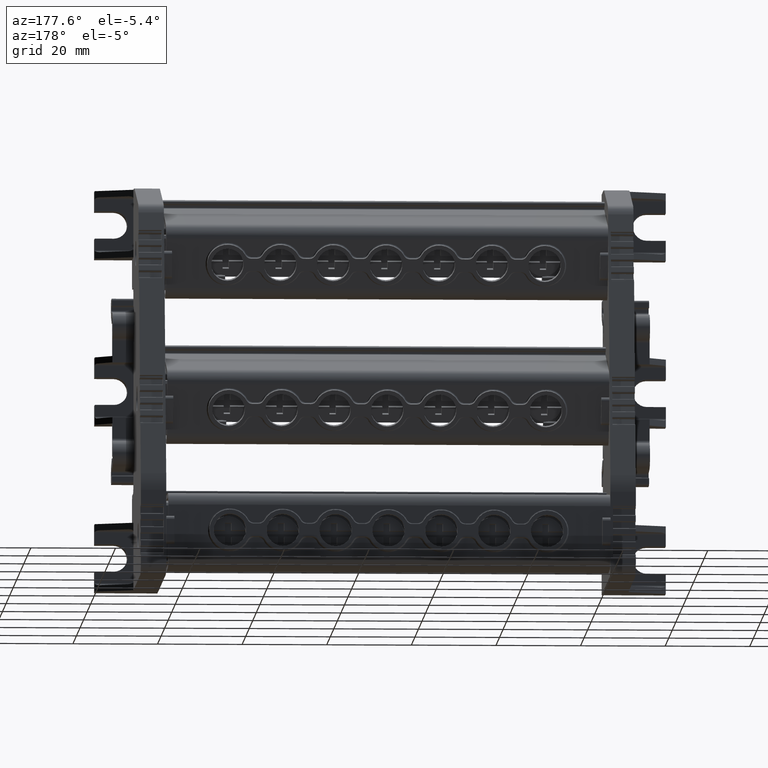
[diagram: clean part render]
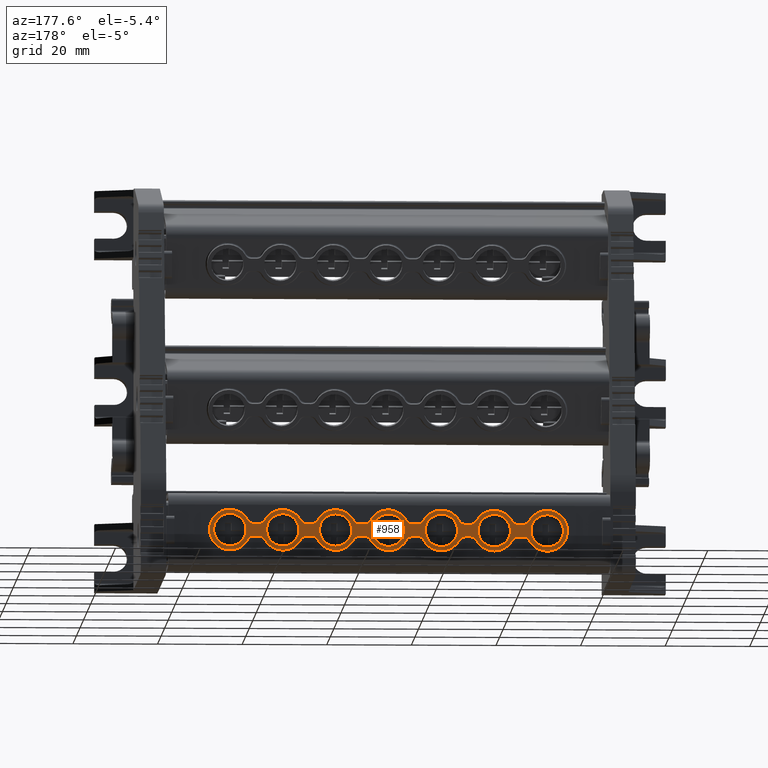
[diagram: same view with one face highlighted and labeled with its STEP entity id]
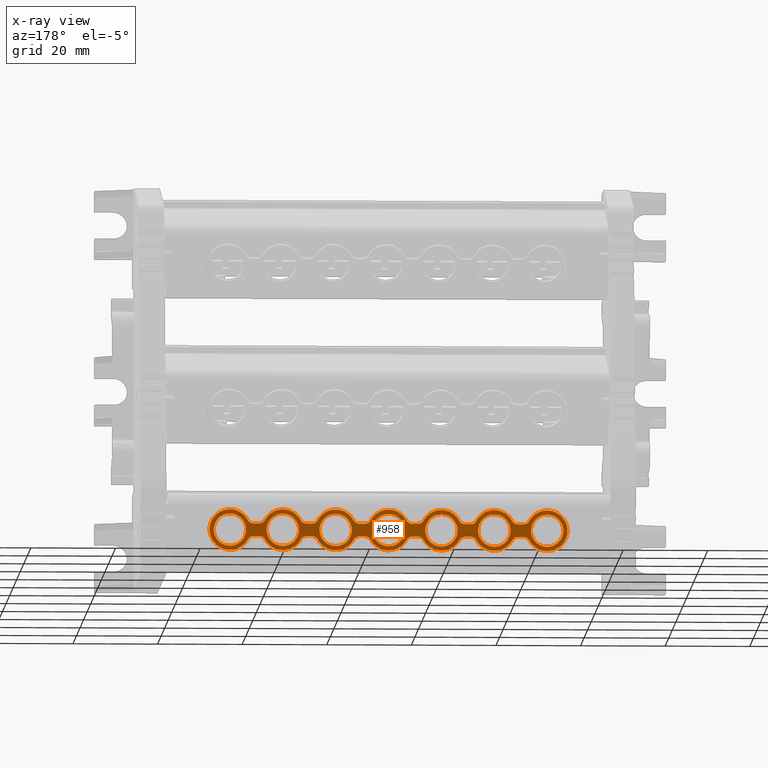
[diagram: x-ray of the same camera — body ghosted, the highlighted face saturated]
A machine part, auxiliary view. The second image highlights one B-rep face of the part: STEP entity #958.
The next image is the same camera in x-ray: the body ghosted, the highlighted face saturated — about 0% of this face is hidden behind the body in this view.
In plain terms, the highlighted planar face has unit normal (-0, -1, -0).
Its self-contained STEP definition (entity closure, byte-faithful):
#958 = ADVANCED_FACE ( 'NONE', ( #37504, #37459, #37449, #37507, #37501, #37443, #37487, #37511 ), #37522, .F. ) ;
#3073 = CARTESIAN_POINT ( 'NONE',  ( -20.82994303252779400, 289.8807331587809700, -33.86765789150299400 ) ) ;
#3079 = DIRECTION ( 'NONE',  ( -1.146722187386910600E-014, -0.9999999999998134800, -6.107034181981857400E-007 ) ) ;
#3083 = DIRECTION ( 'NONE',  ( 0.0000000000000000000, 6.107034238159273200E-007, -0.9999999999998133700 ) ) ;
#3092 = DIRECTION ( 'NONE',  ( 0.0000000000000000000, 6.107034205656040800E-007, -0.9999999999998135900 ) ) ;
#3125 = CARTESIAN_POINT ( 'NONE',  ( -45.82994303252785100, 289.8807331587817700, -33.86765789150329200 ) ) ;
#3149 = DIRECTION ( 'NONE',  ( 6.570237407877552500E-021, -0.9999999999998134800, -6.107034241981179000E-007 ) ) ;
#3163 = LINE ( 'NONE', #3196, #58119 ) ;
#3165 = CARTESIAN_POINT ( 'NONE',  ( 11.37351899162727500, 289.8807322316825400, -32.34956681495015800 ) ) ;
#3167 = CARTESIAN_POINT ( 'NONE',  ( 11.75826639534144400, 289.8807321553562700, -32.22458572907757500 ) ) ;
#3171 = CARTESIAN_POINT ( 'NONE',  ( 11.10514956670431100, 289.8807322427307400, -32.36765789150300800 ) ) ;
#3173 = CARTESIAN_POINT ( 'NONE',  ( -37.90401069697439600, 289.8807342983536200, -35.73364894912862200 ) ) ;
#3176 = CARTESIAN_POINT ( 'NONE',  ( -38.24053829521318400, 289.8807341625681600, -35.51130623023369300 ) ) ;
#3180 = CARTESIAN_POINT ( 'NONE',  ( -38.01071853590442400, 289.8807342464434700, -35.64864854738291200 ) ) ;
#3187 = CARTESIAN_POINT ( 'NONE',  ( 11.98820713317317700, 289.8807320716046500, -32.08744605915330100 ) ) ;
#3196 = CARTESIAN_POINT ( 'NONE',  ( -29.08888853815396300, 289.8807340748413700, -35.36765789150273100 ) ) ;
#3200 = CARTESIAN_POINT ( 'NONE',  ( 12.36070947593018800, 289.8807318344428800, -31.69910447822362400 ) ) ;
#3208 = CARTESIAN_POINT ( 'NONE',  ( -38.36671333071154100, 289.8807341296233600, -35.45736047837304000 ) ) ;
#3215 = CARTESIAN_POINT ( 'NONE',  ( 11.24087474401285300, 289.8807322427307400, -32.36765789150300100 ) ) ;
#3217 = CARTESIAN_POINT ( 'NONE',  ( 11.63281342987424500, 289.8807321880911400, -32.27818783670215200 ) ) ;
#3225 = CARTESIAN_POINT ( 'NONE',  ( -38.62483408134758600, 289.8807340861050100, -35.38610091513022100 ) ) ;
#3229 = CARTESIAN_POINT ( 'NONE',  ( -38.75912516087190300, 289.8807340748415400, -35.36765789150283000 ) ) ;
#3231 = CARTESIAN_POINT ( 'NONE',  ( 12.28075784428799900, 289.8807319012918800, -31.80856668112642200 ) ) ;
#3233 = CARTESIAN_POINT ( 'NONE',  ( -38.89485043329568700, 289.8807340748414800, -35.36765789150283000 ) ) ;
#3249 = CARTESIAN_POINT ( 'NONE',  ( 12.09556007720727100, 289.8807320194059100, -32.00197308259893000 ) ) ;
#3252 = DIRECTION ( 'NONE',  ( 1.000000000000000000, -2.277824242292533500E-016, 8.698456833277494900E-015 ) ) ;
#3254 = CARTESIAN_POINT ( 'NONE',  ( -37.71815093541904700, 289.8807344170639300, -35.92803185692084600 ) ) ;
#3259 = CARTESIAN_POINT ( 'NONE',  ( -37.57489331703025900, 289.8807345560916800, -36.15568661534063500 ) ) ;
#3261 = CARTESIAN_POINT ( 'NONE',  ( 12.42510668297067300, 289.8807317614781600, -31.57962916766576100 ) ) ;
#3268 = CARTESIAN_POINT ( 'NONE',  ( -37.63929047783033600, 289.8807344831296300, -36.03621139056988200 ) ) ;
#3378 = CARTESIAN_POINT ( 'NONE',  ( 8.559356090657503900, 289.8807344162801800, -35.92674910187795200 ) ) ;
#3380 = CARTESIAN_POINT ( 'NONE',  ( -1.394850433295668800, 289.8807340748412600, -35.36765789150251000 ) ) ;
#3385 = CARTESIAN_POINT ( 'NONE',  ( 8.851906801771146900, 289.8807342459675200, -35.64786972385231700 ) ) ;
#3387 = CARTESIAN_POINT ( 'NONE',  ( 9.599239190931975000, 289.8807340748410900, -35.36765789150241100 ) ) ;
#3390 = CARTESIAN_POINT ( 'NONE',  ( 9.081847539602993200, 289.8807341622158400, -35.51073005392792900 ) ) ;
#3394 = CARTESIAN_POINT ( 'NONE',  ( -0.4040106969752129700, 289.8807342983531600, -35.73364894912745600 ) ) ;
#3396 = CARTESIAN_POINT ( 'NONE',  ( -0.8667133307115237900, 289.8807341296230200, -35.45736047837270600 ) ) ;
#3398 = CARTESIAN_POINT ( 'NONE',  ( 8.479404459014171300, 289.8807344831290000, -36.03621130478217100 ) ) ;
#3400 = CARTESIAN_POINT ( 'NONE',  ( -1.124834081346970600, 289.8807340861045000, -35.38610091513000800 ) ) ;
#3403 = CARTESIAN_POINT ( 'NONE',  ( -0.07489331702983133300, 289.8807345560914500, -36.15568661534002400 ) ) ;
#3411 = CARTESIAN_POINT ( 'NONE',  ( 9.207300505067513200, 289.8807341294806900, -35.45712794630419000 ) ) ;
#3415 = CARTESIAN_POINT ( 'NONE',  ( -0.7405382952132461000, 289.8807341625677100, -35.51130623023328800 ) ) ;
#3423 = CARTESIAN_POINT ( 'NONE',  ( 8.415007251974303800, 289.8807345560921400, -36.15568661534000200 ) ) ;
#3425 = LINE ( 'NONE', #3427, #58092 ) ;
#3427 = CARTESIAN_POINT ( 'NONE',  ( 20.91111140698191300, 289.8807322427305700, -32.36765789150291500 ) ) ;
#3429 = DIRECTION ( 'NONE',  ( -1.000000000000000000, -2.156207242221554200E-016, -8.234415423813229200E-015 ) ) ;
#3450 = CARTESIAN_POINT ( 'NONE',  ( 8.744553857737297900, 289.8807342981662600, -35.73334270040662400 ) ) ;
#3452 = CARTESIAN_POINT ( 'NONE',  ( 9.734964368240174100, 289.8807340748410900, -35.36765789150240400 ) ) ;
#3456 = CARTESIAN_POINT ( 'NONE',  ( -0.2181509354190407900, 289.8807344170634800, -35.92803185692036300 ) ) ;
#3461 = CARTESIAN_POINT ( 'NONE',  ( 9.466594943317023300, 289.8807340858893400, -35.38574896805520400 ) ) ;
#3470 = CARTESIAN_POINT ( 'NONE',  ( -0.5107185359044298400, 289.8807342464430100, -35.64864854738252100 ) ) ;
#3472 = CARTESIAN_POINT ( 'NONE',  ( -0.1392904778302620200, 289.8807344831291200, -36.03621139056959100 ) ) ;
#3477 = CARTESIAN_POINT ( 'NONE',  ( -1.259125160872005500, 289.8807340748413100, -35.36765789150248200 ) ) ;
#3512 = DIRECTION ( 'NONE',  ( 0.0000000000000000000, 6.107034205657244700E-007, -0.9999999999998134800 ) ) ;
#3560 = DIRECTION ( 'NONE',  ( 7.172323112706077700E-015, -0.9999999999998134800, -6.107034241982391300E-007 ) ) ;
#3568 = CARTESIAN_POINT ( 'NONE',  ( 29.17005696747219200, 289.8807331587817700, -33.86765789150265200 ) ) ;
#3957 = DIRECTION ( 'NONE',  ( -7.172309972228636200E-015, -0.9999999999998134800, -6.107034241980155100E-007 ) ) ;
#3967 = CARTESIAN_POINT ( 'NONE',  ( 4.170056967472223900, 289.8807331587818200, -33.86765789150289400 ) ) ;
#3976 = DIRECTION ( 'NONE',  ( 0.0000000000000000000, 6.107034205655035000E-007, -0.9999999999998134800 ) ) ;
#3988 = DIRECTION ( 'NONE',  ( -7.172309972229284600E-015, -0.9999999999998134800, -6.107034241980707800E-007 ) ) ;
#3995 = CARTESIAN_POINT ( 'NONE',  ( -20.82994303252778300, 289.8807331587818200, -33.86765789150307200 ) ) ;
#4012 = DIRECTION ( 'NONE',  ( 0.0000000000000000000, 6.107034205655587600E-007, -0.9999999999998135900 ) ) ;
#6350 = VERTEX_POINT ( 'NONE', #81959 ) ;
#6361 = VERTEX_POINT ( 'NONE', #81939 ) ;
#6366 = VERTEX_POINT ( 'NONE', #81956 ) ;
#6376 = VERTEX_POINT ( 'NONE', #81934 ) ;
#6397 = VERTEX_POINT ( 'NONE', #81969 ) ;
#6410 = VERTEX_POINT ( 'NONE', #81923 ) ;
#6412 = VERTEX_POINT ( 'NONE', #81926 ) ;
#6423 = VERTEX_POINT ( 'NONE', #82013 ) ;
#6427 = VERTEX_POINT ( 'NONE', #82014 ) ;
#6428 = VERTEX_POINT ( 'NONE', #81995 ) ;
#6431 = VERTEX_POINT ( 'NONE', #81998 ) ;
#6436 = VERTEX_POINT ( 'NONE', #82006 ) ;
#6440 = VERTEX_POINT ( 'NONE', #82028 ) ;
#6449 = VERTEX_POINT ( 'NONE', #82023 ) ;
#6453 = VERTEX_POINT ( 'NONE', #81993 ) ;
#6465 = VERTEX_POINT ( 'NONE', #82017 ) ;
#6475 = VERTEX_POINT ( 'NONE', #82043 ) ;
#6479 = VERTEX_POINT ( 'NONE', #81990 ) ;
#6483 = VERTEX_POINT ( 'NONE', #82010 ) ;
#6487 = VERTEX_POINT ( 'NONE', #82001 ) ;
#6521 = VERTEX_POINT ( 'NONE', #82092 ) ;
#6533 = VERTEX_POINT ( 'NONE', #82084 ) ;
#6536 = VERTEX_POINT ( 'NONE', #82062 ) ;
#7052 = VERTEX_POINT ( 'NONE', #75251 ) ;
#7054 = VERTEX_POINT ( 'NONE', #75258 ) ;
#7057 = VERTEX_POINT ( 'NONE', #75249 ) ;
#7058 = VERTEX_POINT ( 'NONE', #75257 ) ;
#7061 = VERTEX_POINT ( 'NONE', #75289 ) ;
#7064 = VERTEX_POINT ( 'NONE', #75281 ) ;
#7065 = VERTEX_POINT ( 'NONE', #75267 ) ;
#13192 = B_SPLINE_CURVE_WITH_KNOTS ( 'NONE', 3,
 ( #47928, #47933, #47969, #48005, #47966, #47981, #48012, #47963, #47980, #47962 ),
 .UNSPECIFIED., .F., .F.,
 ( 4, 2, 2, 2, 4 ),
 ( 0.0000000000000000000, 0.0004013963932284718600, 0.0008027927864569437100, 0.001204189179685415500, 0.001605585572913887400 ),
 .UNSPECIFIED. ) ;
#13215 = B_SPLINE_CURVE_WITH_KNOTS ( 'NONE', 3,
 ( #46341, #46234, #46506, #46481, #46375, #46495, #46411, #46378, #46371, #46475 ),
 .UNSPECIFIED., .F., .F.,
 ( 4, 2, 2, 2, 4 ),
 ( 6.938893903907228400E-018, 0.0004013963944116254700, 0.0008027927888232440100, 0.001204189183234862700, 0.001605585577646481100 ),
 .UNSPECIFIED. ) ;
#13218 = B_SPLINE_CURVE_WITH_KNOTS ( 'NONE', 3,
 ( #48016, #48025, #48022, #48028, #48017, #48037, #48014, #48035, #48018, #48026 ),
 .UNSPECIFIED., .F., .F.,
 ( 4, 2, 2, 2, 4 ),
 ( 0.0000000000000000000, 0.0004013963932284708800, 0.0008027927864569417600, 0.001204189179685412600, 0.001605585572913883500 ),
 .UNSPECIFIED. ) ;
#13222 = B_SPLINE_CURVE_WITH_KNOTS ( 'NONE', 3,
 ( #46560, #46552, #46598, #46607, #46580, #46622, #46574, #46630, #46525, #46542 ),
 .UNSPECIFIED., .F., .F.,
 ( 4, 2, 2, 2, 4 ),
 ( 0.0000000000000000000, 0.0004013963932314844200, 0.0008027927864629688400, 0.001204189179694453400, 0.001605585572925937700 ),
 .UNSPECIFIED. ) ;
#13223 = B_SPLINE_CURVE_WITH_KNOTS ( 'NONE', 3,
 ( #46799, #46859, #46818, #46810, #46820, #46825, #46861, #46782, #46832, #46828 ),
 .UNSPECIFIED., .F., .F.,
 ( 4, 2, 2, 2, 4 ),
 ( 6.938893903907228400E-018, 0.0004013963944116329000, 0.0008027927888232588600, 0.001204189183234884800, 0.001605585577646510800 ),
 .UNSPECIFIED. ) ;
#13224 = B_SPLINE_CURVE_WITH_KNOTS ( 'NONE', 3,
 ( #46848, #46788, #46854, #46961, #46883, #46919, #46904, #46896, #46908, #46910 ),
 .UNSPECIFIED., .F., .F.,
 ( 4, 2, 2, 2, 4 ),
 ( 7.757919228897728500E-018, 0.0004013963932314938000, 0.0008027927864629799000, 0.001204189179694465900, 0.001605585572925952000 ),
 .UNSPECIFIED. ) ;
#13225 = B_SPLINE_CURVE_WITH_KNOTS ( 'NONE', 3,
 ( #48072, #48139, #48129, #48067, #48078, #48085, #48068, #48079, #48087, #48080 ),
 .UNSPECIFIED., .F., .F.,
 ( 4, 2, 2, 2, 4 ),
 ( 1.517883041479706200E-017, 0.0004013963944107814200, 0.0008027927888215476700, 0.001204189183232313900, 0.001605585577643079100 ),
 .UNSPECIFIED. ) ;
#13226 = B_SPLINE_CURVE_WITH_KNOTS ( 'NONE', 3,
 ( #46885, #46963, #46914, #46934, #46932, #46936, #46965, #46874, #46872, #46967 ),
 .UNSPECIFIED., .F., .F.,
 ( 4, 2, 2, 2, 4 ),
 ( 0.0000000000000000000, 0.0004013963932276361500, 0.0008027927864552731700, 0.001204189179682910300, 0.001605585572910547400 ),
 .UNSPECIFIED. ) ;
#13227 = B_SPLINE_CURVE_WITH_KNOTS ( 'NONE', 3,
 ( #47071, #47034, #47038, #47027, #47099, #46986, #47044, #47055, #47036, #47057 ),
 .UNSPECIFIED., .F., .F.,
 ( 4, 2, 2, 2, 4 ),
 ( 0.0000000000000000000, 0.0004013963944086070600, 0.0008027927888172141100, 0.001204189183225821300, 0.001605585577634428200 ),
 .UNSPECIFIED. ) ;
#13229 = B_SPLINE_CURVE_WITH_KNOTS ( 'NONE', 3,
 ( #48101, #48094, #48137, #48091, #48141, #48077, #48065, #48093, #48099, #48103 ),
 .UNSPECIFIED., .F., .F.,
 ( 4, 2, 2, 2, 4 ),
 ( 0.0000000000000000000, 0.0004013963932276133300, 0.0008027927864552266600, 0.001204189179682840000, 0.001605585572910453300 ),
 .UNSPECIFIED. ) ;
#13231 = B_SPLINE_CURVE_WITH_KNOTS ( 'NONE', 3,
 ( #48156, #48234, #48182, #48158, #48154, #48223, #48149, #48168, #48194, #48238 ),
 .UNSPECIFIED., .F., .F.,
 ( 4, 2, 2, 2, 4 ),
 ( 2.818925648462311500E-018, 0.0004013963944086063500, 0.0008027927888172098800, 0.001204189183225813500, 0.001605585577634416900 ),
 .UNSPECIFIED. ) ;
#13232 = B_SPLINE_CURVE_WITH_KNOTS ( 'NONE', 3,
 ( #46762, #46842, #46830, #46814, #46803, #46797, #46774, #46844, #46780, #46823 ),
 .UNSPECIFIED., .F., .F.,
 ( 4, 2, 2, 2, 4 ),
 ( 2.194270917860438300E-017, 0.0004013963944086167600, 0.0008027927888172115100, 0.001204189183225806300, 0.001605585577634401100 ),
 .UNSPECIFIED. ) ;
#13234 = B_SPLINE_CURVE_WITH_KNOTS ( 'NONE', 3,
 ( #46512, #46484, #46390, #46502, #46444, #46458, #46469, #46478, #46362, #46472 ),
 .UNSPECIFIED., .F., .F.,
 ( 4, 2, 2, 2, 4 ),
 ( 0.0000000000000000000, 0.0004013963932284732100, 0.0008027927864569464200, 0.001204189179685419600, 0.001605585572913892800 ),
 .UNSPECIFIED. ) ;
#13236 = B_SPLINE_CURVE_WITH_KNOTS ( 'NONE', 3,
 ( #47974, #47971, #47975, #47985, #47978, #47988, #48008, #47993, #47973, #47979 ),
 .UNSPECIFIED., .F., .F.,
 ( 4, 2, 2, 2, 4 ),
 ( 0.0000000000000000000, 0.0004013963932314660400, 0.0008027927864629320900, 0.001204189179694398100, 0.001605585572925864200 ),
 .UNSPECIFIED. ) ;
#13241 = B_SPLINE_CURVE_WITH_KNOTS ( 'NONE', 3,
 ( #46683, #46747, #46718, #46649, #46712, #46702, #46720, #46634, #46679, #46658 ),
 .UNSPECIFIED., .F., .F.,
 ( 4, 2, 2, 2, 4 ),
 ( 5.204170427930421300E-018, 0.0004013963944086091700, 0.0008027927888172131400, 0.001204189183225817200, 0.001605585577634421100 ),
 .UNSPECIFIED. ) ;
#13242 = B_SPLINE_CURVE_WITH_KNOTS ( 'NONE', 3,
 ( #47040, #47088, #47002, #47097, #47090, #46990, #47008, #47042, #46995, #47016 ),
 .UNSPECIFIED., .F., .F.,
 ( 4, 2, 2, 2, 4 ),
 ( 0.0000000000000000000, 0.0004013963932276296500, 0.0008027927864552593000, 0.001204189179682888800, 0.001605585572910518600 ),
 .UNSPECIFIED. ) ;
#13243 = B_SPLINE_CURVE_WITH_KNOTS ( 'NONE', 3,
 ( #48059, #48023, #48024, #48083, #48084, #48069, #48089, #48125, #48096, #48070 ),
 .UNSPECIFIED., .F., .F.,
 ( 4, 2, 2, 2, 4 ),
 ( 7.757919228897728500E-018, 0.0004013963932314823100, 0.0008027927864629569100, 0.001204189179694431500, 0.001605585572925906000 ),
 .UNSPECIFIED. ) ;
#21528 = B_SPLINE_CURVE_WITH_KNOTS ( 'NONE', 3,
 ( #47095, #46993, #47012, #47029, #47053, #46997, #47061, #46982, #47065, #47067 ),
 .UNSPECIFIED., .F., .F.,
 ( 4, 2, 2, 2, 4 ),
 ( 2.194270917860438300E-017, 0.0004013963944107595800, 0.0008027927888214971400, 0.001204189183232234800, 0.001605585577642972400 ),
 .UNSPECIFIED. ) ;
#21529 = B_SPLINE_CURVE_WITH_KNOTS ( 'NONE', 3,
 ( #47289, #47287, #47291, #47293, #47313, #47222, #47315, #47226, #47242, #47234 ),
 .UNSPECIFIED., .F., .F.,
 ( 4, 2, 2, 2, 4 ),
 ( 1.040834085586084300E-017, 0.0004013963944077623500, 0.0008027927888155143000, 0.001204189183223266200, 0.001605585577631018200 ),
 .UNSPECIFIED. ) ;
#21530 = B_SPLINE_CURVE_WITH_KNOTS ( 'NONE', 3,
 ( #47419, #47400, #47359, #47436, #47413, #47343, #47429, #47407, #47392, #47380 ),
 .UNSPECIFIED., .F., .F.,
 ( 4, 2, 2, 2, 4 ),
 ( 8.673617379884035500E-018, 0.0004013963944107828900, 0.0008027927888215521100, 0.001204189183232321300, 0.001605585577643090600 ),
 .UNSPECIFIED. ) ;
#21534 = B_SPLINE_CURVE_WITH_KNOTS ( 'NONE', 3,
 ( #3171, #3215, #3165, #3217, #3167, #3187, #3249, #3231, #3200, #3261 ),
 .UNSPECIFIED., .F., .F.,
 ( 4, 2, 2, 2, 4 ),
 ( 2.525795506525165700E-017, 0.0004013963944086218500, 0.0008027927888172184500, 0.001204189183225815000, 0.001605585577634411500 ),
 .UNSPECIFIED. ) ;
#21535 = B_SPLINE_CURVE_WITH_KNOTS ( 'NONE', 3,
 ( #3259, #3268, #3254, #3173, #3180, #3176, #3208, #3225, #3229, #3233 ),
 .UNSPECIFIED., .F., .F.,
 ( 4, 2, 2, 2, 4 ),
 ( 0.0000000000000000000, 0.0004013963932306234500, 0.0008027927864612469100, 0.001204189179691870400, 0.001605585572922493800 ),
 .UNSPECIFIED. ) ;
#21609 = B_SPLINE_CURVE_WITH_KNOTS ( 'NONE', 3,
 ( #3452, #3387, #3461, #3411, #3390, #3385, #3450, #3378, #3398, #3423 ),
 .UNSPECIFIED., .F., .F.,
 ( 4, 2, 2, 2, 4 ),
 ( 1.908195823574487800E-017, 0.0004013963944107977900, 0.0008027927888215765100, 0.001204189183232355100, 0.001605585577643133900 ),
 .UNSPECIFIED. ) ;
#21659 = B_SPLINE_CURVE_WITH_KNOTS ( 'NONE', 3,
 ( #3403, #3472, #3456, #3394, #3470, #3415, #3396, #3400, #3477, #3380 ),
 .UNSPECIFIED., .F., .F.,
 ( 4, 2, 2, 2, 4 ),
 ( 1.084202172485504400E-019, 0.0004013963932314650100, 0.0008027927864629299200, 0.001204189179694394800, 0.001605585572925859600 ),
 .UNSPECIFIED. ) ;
#30935 = EDGE_LOOP ( 'NONE', ( #65082, #65087 ) ) ;
#30946 = EDGE_LOOP ( 'NONE', ( #65058, #65101 ) ) ;
#30965 = EDGE_LOOP ( 'NONE', ( #65030, #65013, #65007, #65028, #65031, #64996, #65053, #64992, #64997, #65022, #64998, #64984, #65001, #65032, #65024, #64991, #65014, #64989, #65021, #65051, #64981, #64993, #65035, #64978, #65037, #65088, #65076, #65102, #65073, #65070, #65083, #65067, #65080, #65092, #65048, #65042, #65099, #65096, #65098, #65072, #65094, #65046, #65062, #65100, #65043, #65060, #65086, #65104, #65069, #65064, #65097, #65079, #65074, #65049, #65068, #65085, #65078 ) ) ;
#30971 = EDGE_LOOP ( 'NONE', ( #65056, #65065 ) ) ;
#30972 = EDGE_LOOP ( 'NONE', ( #65103, #65077 ) ) ;
#30978 = EDGE_LOOP ( 'NONE', ( #65075, #65054 ) ) ;
#30991 = EDGE_LOOP ( 'NONE', ( #65057, #65055 ) ) ;
#30993 = EDGE_LOOP ( 'NONE', ( #65052, #65044 ) ) ;
#36214 = CARTESIAN_POINT ( 'NONE',  ( -38.89485043329568700, 289.8807340748414800, -35.36765789150283000 ) ) ;
#36218 = CARTESIAN_POINT ( 'NONE',  ( -13.89485043329567300, 289.8807340748412600, -35.36765789150260300 ) ) ;
#36219 = CARTESIAN_POINT ( 'NONE',  ( -15.26503563175985800, 289.8807340748413100, -35.36765789150261000 ) ) ;
#36221 = CARTESIAN_POINT ( 'NONE',  ( 12.42510668297067300, 289.8807317614781600, -31.57962916766576100 ) ) ;
#36237 = CARTESIAN_POINT ( 'NONE',  ( -38.89485043329577300, 289.8807322427291500, -32.36765789150337700 ) ) ;
#36255 = CARTESIAN_POINT ( 'NONE',  ( 23.60514956670433400, 289.8807322427306900, -32.36765789150289400 ) ) ;
#36259 = CARTESIAN_POINT ( 'NONE',  ( -1.394850433295671000, 289.8807322427309100, -32.36765789150311400 ) ) ;
#36261 = CARTESIAN_POINT ( 'NONE',  ( -37.57489331703029500, 289.8807317614785600, -31.57962916766571100 ) ) ;
#36264 = CARTESIAN_POINT ( 'NONE',  ( 22.23496436824013500, 289.8807322427306300, -32.36765789150290800 ) ) ;
#36265 = CARTESIAN_POINT ( 'NONE',  ( -13.89485043329569400, 289.8807322427310300, -32.36765789150320000 ) ) ;
#36271 = CARTESIAN_POINT ( 'NONE',  ( 8.415007251974275300, 289.8807317614772500, -31.57962916766551200 ) ) ;
#36274 = CARTESIAN_POINT ( 'NONE',  ( -41.58499274802586100, 289.8807345560925900, -36.15568661534030100 ) ) ;
#36276 = CARTESIAN_POINT ( 'NONE',  ( -27.76503563175984000, 289.8807340748413700, -35.36765789150271600 ) ) ;
#36278 = CARTESIAN_POINT ( 'NONE',  ( -16.58499274802580100, 289.8807317614774800, -31.57962916766576800 ) ) ;
#36279 = CARTESIAN_POINT ( 'NONE',  ( -29.08499274802532100, 289.8807317614775300, -31.57962916766564400 ) ) ;
#36280 = CARTESIAN_POINT ( 'NONE',  ( -2.765035631759847700, 289.8807322427309100, -32.36765789150312900 ) ) ;
#36281 = CARTESIAN_POINT ( 'NONE',  ( -40.26503563175986500, 289.8807340748414800, -35.36765789150283700 ) ) ;
#36283 = CARTESIAN_POINT ( 'NONE',  ( 11.10514956670431100, 289.8807322427307400, -32.36765789150300800 ) ) ;
#36290 = CARTESIAN_POINT ( 'NONE',  ( 9.734964368240120800, 289.8807322427307400, -32.36765789150301500 ) ) ;
#36291 = CARTESIAN_POINT ( 'NONE',  ( -26.39485043329570100, 289.8807322427312600, -32.36765789150331300 ) ) ;
#36292 = CARTESIAN_POINT ( 'NONE',  ( -29.08499274802524700, 289.8807345560925300, -36.15568661534044300 ) ) ;
#36294 = CARTESIAN_POINT ( 'NONE',  ( 22.23496436824018500, 289.8807340748409700, -35.36765789150229700 ) ) ;
#36295 = CARTESIAN_POINT ( 'NONE',  ( -15.26503563175989700, 289.8807322427310300, -32.36765789150322100 ) ) ;
#36296 = CARTESIAN_POINT ( 'NONE',  ( 9.734964368240174100, 289.8807340748410900, -35.36765789150240400 ) ) ;
#36298 = CARTESIAN_POINT ( 'NONE',  ( 8.415007251974303800, 289.8807345560921400, -36.15568661534000200 ) ) ;
#36299 = CARTESIAN_POINT ( 'NONE',  ( -4.084992748025714000, 289.8807345560923100, -36.15568661534005900 ) ) ;
#36303 = CARTESIAN_POINT ( 'NONE',  ( -12.57489331702978700, 289.8807317614782700, -31.57962916766573300 ) ) ;
#36305 = CARTESIAN_POINT ( 'NONE',  ( 11.10514956670433800, 289.8807340748410300, -35.36765789150239700 ) ) ;
#36307 = CARTESIAN_POINT ( 'NONE',  ( 23.60514956670434100, 289.8807340748409200, -35.36765789150229700 ) ) ;
#36308 = CARTESIAN_POINT ( 'NONE',  ( 20.91500725197387200, 289.8807345560920800, -36.15568661533954800 ) ) ;
#36309 = CARTESIAN_POINT ( 'NONE',  ( -2.765035631759841500, 289.8807340748412600, -35.36765789150252500 ) ) ;
#36310 = CARTESIAN_POINT ( 'NONE',  ( -26.39485043329569400, 289.8807340748413700, -35.36765789150270200 ) ) ;
#36311 = CARTESIAN_POINT ( 'NONE',  ( -16.58499274802575800, 289.8807345560924800, -36.15568661534013000 ) ) ;
#36312 = CARTESIAN_POINT ( 'NONE',  ( -4.084992748025745100, 289.8807317614773600, -31.57962916766563700 ) ) ;
#36313 = CARTESIAN_POINT ( 'NONE',  ( -0.07489331702981996700, 289.8807317614782700, -31.57962916766560100 ) ) ;
#36314 = CARTESIAN_POINT ( 'NONE',  ( 24.92510668297064300, 289.8807317614780500, -31.57962916766562200 ) ) ;
#36315 = CARTESIAN_POINT ( 'NONE',  ( -40.26503563175997200, 289.8807322427312600, -32.36765789150343400 ) ) ;
#36317 = CARTESIAN_POINT ( 'NONE',  ( 20.91500725197379800, 289.8807317614772500, -31.57962916766566500 ) ) ;
#36320 = CARTESIAN_POINT ( 'NONE',  ( -25.07489331702978000, 289.8807317614785000, -31.57962916766583900 ) ) ;
#36321 = CARTESIAN_POINT ( 'NONE',  ( -27.76503563175992200, 289.8807322427311400, -32.36765789150332000 ) ) ;
#36322 = CARTESIAN_POINT ( 'NONE',  ( -1.394850433295668800, 289.8807340748412600, -35.36765789150251000 ) ) ;
#37433 = DIRECTION ( 'NONE',  ( -8.866594088735260800E-015, -0.9999999999998135900, -6.107034309643654200E-007 ) ) ;
#37434 = DIRECTION ( 'NONE',  ( 0.0000000000000000000, 6.107034309643653100E-007, -0.9999999999998134800 ) ) ;
#37439 = CARTESIAN_POINT ( 'NONE',  ( -45.82994303252774400, 289.8807302137848900, -29.04534741218005700 ) ) ;
#37443 = FACE_BOUND ( 'NONE', #30971, .T. ) ;
#37449 = FACE_BOUND ( 'NONE', #30978, .T. ) ;
#37459 = FACE_BOUND ( 'NONE', #30935, .T. ) ;
#37487 = FACE_BOUND ( 'NONE', #30991, .T. ) ;
#37501 = FACE_BOUND ( 'NONE', #30972, .T. ) ;
#37504 = FACE_OUTER_BOUND ( 'NONE', #30965, .T. ) ;
#37507 = FACE_BOUND ( 'NONE', #30946, .T. ) ;
#37511 = FACE_BOUND ( 'NONE', #30993, .T. ) ;
#37522 = PLANE ( 'NONE',  #90173 ) ;
#41612 = DIRECTION ( 'NONE',  ( 0.0000000000000000000, 6.107034205655587600E-007, -0.9999999999998135900 ) ) ;
#41618 = CARTESIAN_POINT ( 'NONE',  ( -20.82994303252778300, 289.8807331587818200, -33.86765789150307200 ) ) ;
#41639 = DIRECTION ( 'NONE',  ( -7.172309972229284600E-015, -0.9999999999998134800, -6.107034241980707800E-007 ) ) ;
#41645 = CARTESIAN_POINT ( 'NONE',  ( 29.17005696747219200, 289.8807331587817700, -33.86765789150265200 ) ) ;
#41651 = DIRECTION ( 'NONE',  ( 7.172323112706077700E-015, -0.9999999999998134800, -6.107034241982391300E-007 ) ) ;
#41670 = DIRECTION ( 'NONE',  ( 0.0000000000000000000, 6.107034205657244700E-007, -0.9999999999998134800 ) ) ;
#41735 = DIRECTION ( 'NONE',  ( 6.570237407877552500E-021, -0.9999999999998134800, -6.107034241981179000E-007 ) ) ;
#41752 = CARTESIAN_POINT ( 'NONE',  ( -45.82994303252785100, 289.8807331587817700, -33.86765789150329200 ) ) ;
#41756 = DIRECTION ( 'NONE',  ( 0.0000000000000000000, 6.107034205656040800E-007, -0.9999999999998135900 ) ) ;
#41791 = DIRECTION ( 'NONE',  ( 0.0000000000000000000, 6.107034205655035000E-007, -0.9999999999998134800 ) ) ;
#41815 = CARTESIAN_POINT ( 'NONE',  ( 4.170056967472223900, 289.8807331587818200, -33.86765789150289400 ) ) ;
#41816 = DIRECTION ( 'NONE',  ( -7.172309972228636200E-015, -0.9999999999998134800, -6.107034241980155100E-007 ) ) ;
#41827 = DIRECTION ( 'NONE',  ( 0.0000000000000000000, 6.107034205656139300E-007, -0.9999999999998134800 ) ) ;
#41840 = CARTESIAN_POINT ( 'NONE',  ( 16.67005696747221000, 289.8807331587818200, -33.86765789150278700 ) ) ;
#41860 = DIRECTION ( 'NONE',  ( -7.172309972229925200E-015, -0.9999999999998134800, -6.107034241981254200E-007 ) ) ;
#41866 = DIRECTION ( 'NONE',  ( 0.0000000000000000000, 6.107034205657255200E-007, -0.9999999999998134800 ) ) ;
#41891 = CARTESIAN_POINT ( 'NONE',  ( -33.32994303252780100, 289.8807331587818200, -33.86765789150319300 ) ) ;
#41893 = DIRECTION ( 'NONE',  ( -7.172309972231222100E-015, -0.9999999999998134800, -6.107034241982358500E-007 ) ) ;
#41957 = DIRECTION ( 'NONE',  ( -7.172309424710862800E-015, -0.9999999999998134800, -6.107034241981863000E-007 ) ) ;
#41976 = DIRECTION ( 'NONE',  ( 0.0000000000000000000, 6.107034205656757600E-007, -0.9999999999998134800 ) ) ;
#41987 = CARTESIAN_POINT ( 'NONE',  ( -8.329943032527758400, 289.8807331587818200, -33.86765789150297200 ) ) ;
#41995 = DIRECTION ( 'NONE',  ( -1.146722187386910600E-014, -0.9999999999998134800, -6.107034181981857400E-007 ) ) ;
#42011 = CARTESIAN_POINT ( 'NONE',  ( -20.82994303252779400, 289.8807331587809700, -33.86765789150299400 ) ) ;
#42019 = DIRECTION ( 'NONE',  ( 0.0000000000000000000, 6.107034238159273200E-007, -0.9999999999998133700 ) ) ;
#42038 = DIRECTION ( 'NONE',  ( 0.0000000000000000000, 6.107034238161119700E-007, -0.9999999999998135900 ) ) ;
#42042 = CARTESIAN_POINT ( 'NONE',  ( 16.67005696747224200, 289.8807331587809700, -33.86765789150267400 ) ) ;
#42049 = DIRECTION ( 'NONE',  ( -1.146722187387255700E-014, -0.9999999999998134800, -6.107034181983695500E-007 ) ) ;
#42089 = DIRECTION ( 'NONE',  ( -1.146722214462829200E-014, -0.9999999999998134800, -6.107034154170139400E-007 ) ) ;
#42090 = DIRECTION ( 'NONE',  ( 0.0000000000000000000, 6.107034123047795300E-007, -0.9999999999998135900 ) ) ;
#42115 = CARTESIAN_POINT ( 'NONE',  ( 29.17005696747225200, 289.8807331587808000, -33.86765789150256000 ) ) ;
#42123 = DIRECTION ( 'NONE',  ( -1.146722198082382500E-014, -0.9999999999998134800, -6.107034181605991900E-007 ) ) ;
#42137 = CARTESIAN_POINT ( 'NONE',  ( -45.82994303252785800, 289.8807331587809700, -33.86765789150321400 ) ) ;
#42163 = DIRECTION ( 'NONE',  ( 0.0000000000000000000, 6.107034238159564300E-007, -0.9999999999998135900 ) ) ;
#42168 = DIRECTION ( 'NONE',  ( 0.0000000000000000000, 6.107034238159010600E-007, -0.9999999999998135900 ) ) ;
#42182 = CARTESIAN_POINT ( 'NONE',  ( -33.32994303252782200, 289.8807331587809700, -33.86765789150310000 ) ) ;
#42187 = DIRECTION ( 'NONE',  ( -1.146722187386516300E-014, -0.9999999999998134800, -6.107034181979747300E-007 ) ) ;
#42190 = DIRECTION ( 'NONE',  ( -1.146722214462829200E-014, -0.9999999999998134800, -6.107034154170139400E-007 ) ) ;
#42193 = CARTESIAN_POINT ( 'NONE',  ( 29.17005696747225200, 289.8807331587808000, -33.86765789150256000 ) ) ;
#42196 = CARTESIAN_POINT ( 'NONE',  ( 4.170056967472231900, 289.8807331587809700, -33.86765789150278000 ) ) ;
#42199 = DIRECTION ( 'NONE',  ( 0.0000000000000000000, 6.107034238157165100E-007, -0.9999999999998135900 ) ) ;
#42203 = DIRECTION ( 'NONE',  ( -1.146722187386861600E-014, -0.9999999999998134800, -6.107034181981598000E-007 ) ) ;
#42206 = DIRECTION ( 'NONE',  ( 0.0000000000000000000, 6.107034123047795300E-007, -0.9999999999998135900 ) ) ;
#42215 = DIRECTION ( 'NONE',  ( -1.146722187386887600E-014, -0.9999999999998134800, -6.107034181981734600E-007 ) ) ;
#42218 = CARTESIAN_POINT ( 'NONE',  ( -45.82994303252785800, 289.8807331587809700, -33.86765789150321400 ) ) ;
#42222 = CARTESIAN_POINT ( 'NONE',  ( -8.329943032527753000, 289.8807331587809700, -33.86765789150289400 ) ) ;
#42227 = DIRECTION ( 'NONE',  ( 0.0000000000000000000, 6.107034238159564300E-007, -0.9999999999998135900 ) ) ;
#42245 = DIRECTION ( 'NONE',  ( -1.146722198082382500E-014, -0.9999999999998134800, -6.107034181605991900E-007 ) ) ;
#42249 = DIRECTION ( 'NONE',  ( 0.0000000000000000000, 6.107034238159151400E-007, -0.9999999999998135900 ) ) ;
#46227 = CARTESIAN_POINT ( 'NONE',  ( -8.329943032527753000, 289.8807331587808600, -33.86765789150289400 ) ) ;
#46234 = CARTESIAN_POINT ( 'NONE',  ( -27.90076080906791800, 289.8807340748413700, -35.36765789150268800 ) ) ;
#46247 = DIRECTION ( 'NONE',  ( -1.146722215545573700E-014, -0.9999999999998134800, -6.107034217272611700E-007 ) ) ;
#46257 = DIRECTION ( 'NONE',  ( 0.0000000000000000000, 6.107034238161119700E-007, -0.9999999999998135900 ) ) ;
#46267 = CARTESIAN_POINT ( 'NONE',  ( -33.32994303252782200, 289.8807331587809700, -33.86765789150310000 ) ) ;
#46269 = DIRECTION ( 'NONE',  ( 0.0000000000000000000, 6.107034238157165100E-007, -0.9999999999998135900 ) ) ;
#46291 = DIRECTION ( 'NONE',  ( -1.146722187387255700E-014, -0.9999999999998134800, -6.107034181983695500E-007 ) ) ;
#46296 = DIRECTION ( 'NONE',  ( -1.146722187386516300E-014, -0.9999999999998134800, -6.107034181979747300E-007 ) ) ;
#46320 = DIRECTION ( 'NONE',  ( 0.0000000000000000000, 6.107034238159151400E-007, -0.9999999999998135900 ) ) ;
#46341 = CARTESIAN_POINT ( 'NONE',  ( -27.76503563175984000, 289.8807340748413700, -35.36765789150271600 ) ) ;
#46344 = CARTESIAN_POINT ( 'NONE',  ( 16.67005696747224200, 289.8807331587809700, -33.86765789150267400 ) ) ;
#46362 = CARTESIAN_POINT ( 'NONE',  ( 22.09923909581602400, 289.8807322427307400, -32.36765789150290800 ) ) ;
#46371 = CARTESIAN_POINT ( 'NONE',  ( -29.02059554098590200, 289.8807344831292300, -36.03621130478244100 ) ) ;
#46375 = CARTESIAN_POINT ( 'NONE',  ( -28.41815246039704200, 289.8807341622161900, -35.51073005392812800 ) ) ;
#46378 = CARTESIAN_POINT ( 'NONE',  ( -28.94064390934210000, 289.8807344162802300, -35.92674910187764700 ) ) ;
#46390 = CARTESIAN_POINT ( 'NONE',  ( 21.05826487036340900, 289.8807319005085200, -31.80728392608467200 ) ) ;
#46393 = DIRECTION ( 'NONE',  ( -1.146722215545942300E-014, -0.9999999999998134800, -6.107034217274573600E-007 ) ) ;
#46405 = CARTESIAN_POINT ( 'NONE',  ( -20.82994303252779400, 289.8807331587808600, -33.86765789150299400 ) ) ;
#46411 = CARTESIAN_POINT ( 'NONE',  ( -28.75544614226269100, 289.8807342981663200, -35.73334270040679400 ) ) ;
#46418 = DIRECTION ( 'NONE',  ( 0.0000000000000000000, 6.107034238161119700E-007, -0.9999999999998135900 ) ) ;
#46433 = DIRECTION ( 'NONE',  ( 0.0000000000000000000, 6.107034238159273200E-007, -0.9999999999998133700 ) ) ;
#46439 = DIRECTION ( 'NONE',  ( -1.146722215545596800E-014, -0.9999999999998134800, -6.107034217272732400E-007 ) ) ;
#46444 = CARTESIAN_POINT ( 'NONE',  ( 21.35083247084877900, 289.8807320711289900, -32.08666723562279800 ) ) ;
#46458 = CARTESIAN_POINT ( 'NONE',  ( 21.58065223015741200, 289.8807321550042400, -32.22400955277196000 ) ) ;
#46467 = CARTESIAN_POINT ( 'NONE',  ( 16.67005696747224200, 289.8807331587808600, -33.86765789150267400 ) ) ;
#46469 = CARTESIAN_POINT ( 'NONE',  ( 21.70682726565595300, 289.8807321879491500, -32.27795530463277600 ) ) ;
#46472 = CARTESIAN_POINT ( 'NONE',  ( 22.23496436824013500, 289.8807322427306300, -32.36765789150290800 ) ) ;
#46475 = CARTESIAN_POINT ( 'NONE',  ( -29.08499274802524700, 289.8807345560925300, -36.15568661534044300 ) ) ;
#46478 = CARTESIAN_POINT ( 'NONE',  ( 21.96494801629349400, 289.8807322314675600, -32.34921486787586500 ) ) ;
#46481 = CARTESIAN_POINT ( 'NONE',  ( -28.29269949493358300, 289.8807341294809700, -35.45712794630475200 ) ) ;
#46484 = CARTESIAN_POINT ( 'NONE',  ( 20.97940441277487300, 289.8807318344429400, -31.69910439243615800 ) ) ;
#46495 = CARTESIAN_POINT ( 'NONE',  ( -28.64809319822894600, 289.8807342459677400, -35.64786972385253700 ) ) ;
#46502 = CARTESIAN_POINT ( 'NONE',  ( 21.24412463191670500, 289.8807320192186700, -32.00166683387511300 ) ) ;
#46506 = CARTESIAN_POINT ( 'NONE',  ( -28.03340505668308300, 289.8807340858896900, -35.38574896805538800 ) ) ;
#46512 = CARTESIAN_POINT ( 'NONE',  ( 20.91500725197379800, 289.8807317614772500, -31.57962916766566500 ) ) ;
#46525 = CARTESIAN_POINT ( 'NONE',  ( 11.24087483912801100, 289.8807340748412600, -35.36765789150241800 ) ) ;
#46542 = CARTESIAN_POINT ( 'NONE',  ( 11.10514956670433800, 289.8807340748410300, -35.36765789150239700 ) ) ;
#46552 = CARTESIAN_POINT ( 'NONE',  ( 12.36070952216978800, 289.8807344831289500, -36.03621139056959800 ) ) ;
#46560 = CARTESIAN_POINT ( 'NONE',  ( 12.42510668297070000, 289.8807345560913400, -36.15568661533971800 ) ) ;
#46574 = CARTESIAN_POINT ( 'NONE',  ( 11.63328666928849800, 289.8807341296226800, -35.45736047837269200 ) ) ;
#46580 = CARTESIAN_POINT ( 'NONE',  ( 11.98928146409560600, 289.8807342464430100, -35.64864854738250700 ) ) ;
#46598 = CARTESIAN_POINT ( 'NONE',  ( 12.28184906458099400, 289.8807344170635400, -35.92803185692038400 ) ) ;
#46607 = CARTESIAN_POINT ( 'NONE',  ( 12.09598930302482400, 289.8807342983532200, -35.73364894912747000 ) ) ;
#46622 = CARTESIAN_POINT ( 'NONE',  ( 11.75946170478679200, 289.8807341625675900, -35.51130623023325900 ) ) ;
#46630 = CARTESIAN_POINT ( 'NONE',  ( 11.37516591865303000, 289.8807340861042100, -35.38610091512995800 ) ) ;
#46634 = CARTESIAN_POINT ( 'NONE',  ( -12.71924215571201900, 289.8807319012921100, -31.80856668112663100 ) ) ;
#46649 = CARTESIAN_POINT ( 'NONE',  ( -13.36718657012579700, 289.8807321880914300, -32.27818783670236500 ) ) ;
#46658 = CARTESIAN_POINT ( 'NONE',  ( -12.57489331702978700, 289.8807317614782700, -31.57962916766573300 ) ) ;
#46679 = CARTESIAN_POINT ( 'NONE',  ( -12.63929052406982800, 289.8807318344431100, -31.69910447822382700 ) ) ;
#46683 = CARTESIAN_POINT ( 'NONE',  ( -13.89485043329569400, 289.8807322427310300, -32.36765789150320000 ) ) ;
#46702 = CARTESIAN_POINT ( 'NONE',  ( -13.01179286682685500, 289.8807320716045400, -32.08744605915350700 ) ) ;
#46712 = CARTESIAN_POINT ( 'NONE',  ( -13.24173360465859700, 289.8807321553562700, -32.22458572907778800 ) ) ;
#46718 = CARTESIAN_POINT ( 'NONE',  ( -13.62648100837278200, 289.8807322316829400, -32.34956681495037100 ) ) ;
#46720 = CARTESIAN_POINT ( 'NONE',  ( -12.90443992279276000, 289.8807320194060800, -32.00197308259912900 ) ) ;
#46747 = CARTESIAN_POINT ( 'NONE',  ( -13.75912525598717600, 289.8807322427309700, -32.36765789150320000 ) ) ;
#46762 = CARTESIAN_POINT ( 'NONE',  ( -38.89485043329577300, 289.8807322427291500, -32.36765789150337700 ) ) ;
#46774 = CARTESIAN_POINT ( 'NONE',  ( -37.90443992279281100, 289.8807320194063700, -32.00197308259937800 ) ) ;
#46776 = DIRECTION ( 'NONE',  ( -1.146722215544786800E-014, -0.9999999999998134800, -6.107034159932247300E-007 ) ) ;
#46780 = CARTESIAN_POINT ( 'NONE',  ( -37.63929052406987800, 289.8807318344436800, -31.69910447822406900 ) ) ;
#46782 = CARTESIAN_POINT ( 'NONE',  ( -41.44064390934217800, 289.8807344162806300, -35.92674910187781000 ) ) ;
#46788 = CARTESIAN_POINT ( 'NONE',  ( -12.63929047783019900, 289.8807344831292300, -36.03621139056975400 ) ) ;
#46792 = DIRECTION ( 'NONE',  ( 0.0000000000000000000, 6.107034123043990000E-007, -0.9999999999998135900 ) ) ;
#46797 = CARTESIAN_POINT ( 'NONE',  ( -38.01179286682688700, 289.8807320716047700, -32.08744605915373400 ) ) ;
#46799 = CARTESIAN_POINT ( 'NONE',  ( -40.26503563175986500, 289.8807340748414800, -35.36765789150283700 ) ) ;
#46803 = CARTESIAN_POINT ( 'NONE',  ( -38.24173360465862000, 289.8807321553564400, -32.22458572907800800 ) ) ;
#46808 = CARTESIAN_POINT ( 'NONE',  ( -33.32994303252782200, 289.8807331587808600, -33.86765789150310700 ) ) ;
#46810 = CARTESIAN_POINT ( 'NONE',  ( -40.79269949493360100, 289.8807341294809700, -35.45712794630490800 ) ) ;
#46814 = CARTESIAN_POINT ( 'NONE',  ( -38.36718657012582400, 289.8807321880917700, -32.27818783670260000 ) ) ;
#46818 = CARTESIAN_POINT ( 'NONE',  ( -40.53340505668311500, 289.8807340858896900, -35.38574896805555200 ) ) ;
#46820 = CARTESIAN_POINT ( 'NONE',  ( -40.91815246039708900, 289.8807341622161900, -35.51073005392829200 ) ) ;
#46823 = CARTESIAN_POINT ( 'NONE',  ( -37.57489331703029500, 289.8807317614785600, -31.57962916766571100 ) ) ;
#46825 = CARTESIAN_POINT ( 'NONE',  ( -41.14809319822899200, 289.8807342459678600, -35.64786972385272200 ) ) ;
#46828 = CARTESIAN_POINT ( 'NONE',  ( -41.58499274802586100, 289.8807345560925900, -36.15568661534030100 ) ) ;
#46830 = CARTESIAN_POINT ( 'NONE',  ( -38.62648100837280700, 289.8807322316831700, -32.34956681495059900 ) ) ;
#46832 = CARTESIAN_POINT ( 'NONE',  ( -41.52059554098595800, 289.8807344831291200, -36.03621130478261800 ) ) ;
#46842 = CARTESIAN_POINT ( 'NONE',  ( -38.75912525598720000, 289.8807322427312600, -32.36765789150345500 ) ) ;
#46844 = CARTESIAN_POINT ( 'NONE',  ( -37.71924215571208800, 289.8807319012923900, -31.80856668112688000 ) ) ;
#46848 = CARTESIAN_POINT ( 'NONE',  ( -12.57489331702978100, 289.8807345560914500, -36.15568661534013700 ) ) ;
#46854 = CARTESIAN_POINT ( 'NONE',  ( -12.71815093541899700, 289.8807344170636500, -35.92803185692051200 ) ) ;
#46859 = CARTESIAN_POINT ( 'NONE',  ( -40.40076080906796100, 289.8807340748414300, -35.36765789150283000 ) ) ;
#46861 = CARTESIAN_POINT ( 'NONE',  ( -41.25544614226274800, 289.8807342981667100, -35.73334270040697900 ) ) ;
#46872 = CARTESIAN_POINT ( 'NONE',  ( -2.900760904184110300, 289.8807322427309700, -32.36765789150315000 ) ) ;
#46874 = CARTESIAN_POINT ( 'NONE',  ( -3.035051983705931100, 289.8807322314674500, -32.34921486787623500 ) ) ;
#46883 = CARTESIAN_POINT ( 'NONE',  ( -13.01071853590438600, 289.8807342464431300, -35.64864854738265600 ) ) ;
#46885 = CARTESIAN_POINT ( 'NONE',  ( -4.084992748025745100, 289.8807317614773600, -31.57962916766563700 ) ) ;
#46888 = DIRECTION ( 'NONE',  ( -1.146722214462829200E-014, -0.9999999999998134800, -6.107034154170139400E-007 ) ) ;
#46896 = CARTESIAN_POINT ( 'NONE',  ( -13.62483408134696500, 289.8807340861045000, -35.38610091513012900 ) ) ;
#46904 = CARTESIAN_POINT ( 'NONE',  ( -13.36671333071150200, 289.8807341296230200, -35.45736047837284100 ) ) ;
#46908 = CARTESIAN_POINT ( 'NONE',  ( -13.75912516087199600, 289.8807340748413100, -35.36765789150260300 ) ) ;
#46910 = CARTESIAN_POINT ( 'NONE',  ( -13.89485043329567300, 289.8807340748412600, -35.36765789150260300 ) ) ;
#46914 = CARTESIAN_POINT ( 'NONE',  ( -3.941735129636634700, 289.8807319005086900, -31.80728392608483200 ) ) ;
#46919 = CARTESIAN_POINT ( 'NONE',  ( -13.24053829521320600, 289.8807341625677100, -35.51130623023340100 ) ) ;
#46932 = CARTESIAN_POINT ( 'NONE',  ( -3.649167529151280400, 289.8807320711289900, -32.08666723562301800 ) ) ;
#46934 = CARTESIAN_POINT ( 'NONE',  ( -3.755875368084140100, 289.8807320192189500, -32.00166683387460200 ) ) ;
#46936 = CARTESIAN_POINT ( 'NONE',  ( -3.419347769842688800, 289.8807321550043000, -32.22400955277216600 ) ) ;
#46945 = CARTESIAN_POINT ( 'NONE',  ( 8.411111461846070700, 289.8807340748410900, -35.36765789150243900 ) ) ;
#46957 = CARTESIAN_POINT ( 'NONE',  ( 29.17005696747225200, 289.8807331587808000, -33.86765789150256000 ) ) ;
#46961 = CARTESIAN_POINT ( 'NONE',  ( -12.90401069697517000, 289.8807342983532700, -35.73364894912759800 ) ) ;
#46963 = CARTESIAN_POINT ( 'NONE',  ( -4.020595587225088300, 289.8807318344428800, -31.69910439243650700 ) ) ;
#46965 = CARTESIAN_POINT ( 'NONE',  ( -3.293172734344056900, 289.8807321879490400, -32.27795530463306100 ) ) ;
#46967 = CARTESIAN_POINT ( 'NONE',  ( -2.765035631759847700, 289.8807322427309100, -32.36765789150312900 ) ) ;
#46976 = DIRECTION ( 'NONE',  ( 0.0000000000000000000, 6.107034123047795300E-007, -0.9999999999998135900 ) ) ;
#46982 = CARTESIAN_POINT ( 'NONE',  ( 21.05935609065760500, 289.8807344162801200, -35.92674910187768200 ) ) ;
#46986 = CARTESIAN_POINT ( 'NONE',  ( -25.51179286682686300, 289.8807320716047700, -32.08744605915361300 ) ) ;
#46990 = CARTESIAN_POINT ( 'NONE',  ( 9.080652230157300100, 289.8807321550043000, -32.22400955277204600 ) ) ;
#46993 = CARTESIAN_POINT ( 'NONE',  ( 22.09923919093201100, 289.8807340748410300, -35.36765789150227600 ) ) ;
#46995 = CARTESIAN_POINT ( 'NONE',  ( 9.599239095815850200, 289.8807322427308600, -32.36765789150302200 ) ) ;
#46997 = CARTESIAN_POINT ( 'NONE',  ( 21.35190680177123600, 289.8807342459673500, -35.64786972385209700 ) ) ;
#47002 = CARTESIAN_POINT ( 'NONE',  ( 8.558264870363354100, 289.8807319005086900, -31.80728392608472900 ) ) ;
#47008 = CARTESIAN_POINT ( 'NONE',  ( 9.206827265655924500, 289.8807321879492100, -32.27795530463294000 ) ) ;
#47012 = CARTESIAN_POINT ( 'NONE',  ( 21.96659494331706600, 289.8807340858893400, -35.38574896805502600 ) ) ;
#47016 = CARTESIAN_POINT ( 'NONE',  ( 9.734964368240120800, 289.8807322427307400, -32.36765789150301500 ) ) ;
#47027 = CARTESIAN_POINT ( 'NONE',  ( -25.86718657012580300, 289.8807321880916600, -32.27818783670250000 ) ) ;
#47029 = CARTESIAN_POINT ( 'NONE',  ( 21.70730050506755800, 289.8807341294806300, -35.45712794630399900 ) ) ;
#47034 = CARTESIAN_POINT ( 'NONE',  ( -26.25912525598717200, 289.8807322427313100, -32.36765789150332800 ) ) ;
#47036 = CARTESIAN_POINT ( 'NONE',  ( -25.13929052406986000, 289.8807318344434000, -31.69910447822393000 ) ) ;
#47038 = CARTESIAN_POINT ( 'NONE',  ( -26.12648100837280300, 289.8807322316831100, -32.34956681495052100 ) ) ;
#47040 = CARTESIAN_POINT ( 'NONE',  ( 8.415007251974275300, 289.8807317614772500, -31.57962916766551200 ) ) ;
#47042 = CARTESIAN_POINT ( 'NONE',  ( 9.464948016294048500, 289.8807322314676800, -32.34921486787612100 ) ) ;
#47044 = CARTESIAN_POINT ( 'NONE',  ( -25.40443992279277200, 289.8807320194062500, -32.00197308259923500 ) ) ;
#47053 = CARTESIAN_POINT ( 'NONE',  ( 21.58184753960307100, 289.8807341622157300, -35.51073005392772300 ) ) ;
#47055 = CARTESIAN_POINT ( 'NONE',  ( -25.21924215571204500, 289.8807319012923400, -31.80856668112672700 ) ) ;
#47057 = CARTESIAN_POINT ( 'NONE',  ( -25.07489331702978000, 289.8807317614785000, -31.57962916766583900 ) ) ;
#47061 = CARTESIAN_POINT ( 'NONE',  ( 21.24455385773738300, 289.8807342981662000, -35.73334270040639600 ) ) ;
#47065 = CARTESIAN_POINT ( 'NONE',  ( 20.97940445901425800, 289.8807344831287800, -36.03621130478189400 ) ) ;
#47067 = CARTESIAN_POINT ( 'NONE',  ( 20.91500725197387200, 289.8807345560920800, -36.15568661533954800 ) ) ;
#47071 = CARTESIAN_POINT ( 'NONE',  ( -26.39485043329570100, 289.8807322427312600, -32.36765789150331300 ) ) ;
#47076 = DIRECTION ( 'NONE',  ( 1.000000000000000000, -2.277824242292533500E-016, 8.698456833277494900E-015 ) ) ;
#47088 = CARTESIAN_POINT ( 'NONE',  ( 8.479404412774885100, 289.8807318344429400, -31.69910439243639600 ) ) ;
#47090 = CARTESIAN_POINT ( 'NONE',  ( 8.850832470848709800, 289.8807320711290500, -32.08666723562291200 ) ) ;
#47095 = CARTESIAN_POINT ( 'NONE',  ( 22.23496436824018500, 289.8807340748409700, -35.36765789150229700 ) ) ;
#47097 = CARTESIAN_POINT ( 'NONE',  ( 8.744124631915847000, 289.8807320192188400, -32.00166683387447400 ) ) ;
#47099 = CARTESIAN_POINT ( 'NONE',  ( -25.74173360465861300, 289.8807321553564400, -32.22458572907790900 ) ) ;
#47117 = DIRECTION ( 'NONE',  ( 0.0000000000000000000, 6.107034238159010600E-007, -0.9999999999998135900 ) ) ;
#47149 = CARTESIAN_POINT ( 'NONE',  ( 4.170056967472231900, 289.8807331587809700, -33.86765789150278000 ) ) ;
#47198 = DIRECTION ( 'NONE',  ( -1.146722187386861600E-014, -0.9999999999998134800, -6.107034181981598000E-007 ) ) ;
#47218 = LINE ( 'NONE', #47267, #57784 ) ;
#47220 = DIRECTION ( 'NONE',  ( 0.0000000000000000000, 6.107034238159151400E-007, -0.9999999999998135900 ) ) ;
#47222 = CARTESIAN_POINT ( 'NONE',  ( 24.48820713317310900, 289.8807320716043100, -32.08744605915325100 ) ) ;
#47226 = CARTESIAN_POINT ( 'NONE',  ( 24.78075784428838800, 289.8807319012918800, -31.80856668112588200 ) ) ;
#47234 = CARTESIAN_POINT ( 'NONE',  ( 24.92510668297064300, 289.8807317614780500, -31.57962916766562200 ) ) ;
#47236 = DIRECTION ( 'NONE',  ( 1.000000000000000000, -2.277824242292533500E-016, 8.698456833277494900E-015 ) ) ;
#47242 = CARTESIAN_POINT ( 'NONE',  ( 24.86070947593015000, 289.8807318344430000, -31.69910447822359200 ) ) ;
#47256 = CARTESIAN_POINT ( 'NONE',  ( -33.32994303252780100, 289.8807331587818200, -33.86765789150319300 ) ) ;
#47261 = DIRECTION ( 'NONE',  ( 0.0000000000000000000, 6.107034205657255200E-007, -0.9999999999998134800 ) ) ;
#47263 = DIRECTION ( 'NONE',  ( -7.172309972231222100E-015, -0.9999999999998134800, -6.107034241982358500E-007 ) ) ;
#47267 = CARTESIAN_POINT ( 'NONE',  ( -41.58888853815395200, 289.8807340748414300, -35.36765789150285100 ) ) ;
#47287 = CARTESIAN_POINT ( 'NONE',  ( 23.74087474401298800, 289.8807322427305700, -32.36765789150293000 ) ) ;
#47289 = CARTESIAN_POINT ( 'NONE',  ( 23.60514956670433400, 289.8807322427306900, -32.36765789150289400 ) ) ;
#47291 = CARTESIAN_POINT ( 'NONE',  ( 23.87351899162718300, 289.8807322316824300, -32.34956681495005900 ) ) ;
#47293 = CARTESIAN_POINT ( 'NONE',  ( 24.13281342987316300, 289.8807321880910300, -32.27818783670244300 ) ) ;
#47304 = DIRECTION ( 'NONE',  ( -1.146722187386887600E-014, -0.9999999999998134800, -6.107034181981734600E-007 ) ) ;
#47313 = CARTESIAN_POINT ( 'NONE',  ( 24.25826639534140800, 289.8807321553559300, -32.22458572907750400 ) ) ;
#47315 = CARTESIAN_POINT ( 'NONE',  ( 24.59556007720730300, 289.8807320194058000, -32.00197308259883800 ) ) ;
#47323 = CARTESIAN_POINT ( 'NONE',  ( -8.329943032527753000, 289.8807331587809700, -33.86765789150289400 ) ) ;
#47343 = CARTESIAN_POINT ( 'NONE',  ( -16.14809319822887400, 289.8807342459676900, -35.64786972385246600 ) ) ;
#47359 = CARTESIAN_POINT ( 'NONE',  ( -15.53340505668299400, 289.8807340858895700, -35.38574896805536700 ) ) ;
#47380 = CARTESIAN_POINT ( 'NONE',  ( -16.58499274802575800, 289.8807345560924800, -36.15568661534013000 ) ) ;
#47392 = CARTESIAN_POINT ( 'NONE',  ( -16.52059554098585200, 289.8807344831292900, -36.03621130478229200 ) ) ;
#47400 = CARTESIAN_POINT ( 'NONE',  ( -15.40076080906805500, 289.8807340748413700, -35.36765789150261000 ) ) ;
#47407 = CARTESIAN_POINT ( 'NONE',  ( -16.44064390934252600, 289.8807344162803500, -35.92674910187808000 ) ) ;
#47413 = CARTESIAN_POINT ( 'NONE',  ( -15.91815246039702500, 289.8807341622161300, -35.51073005392807100 ) ) ;
#47419 = CARTESIAN_POINT ( 'NONE',  ( -15.26503563175985800, 289.8807340748413100, -35.36765789150261000 ) ) ;
#47429 = CARTESIAN_POINT ( 'NONE',  ( -16.25544614226273100, 289.8807342981664900, -35.73334270040675900 ) ) ;
#47436 = CARTESIAN_POINT ( 'NONE',  ( -15.79269949493249700, 289.8807341294808600, -35.45712794630434000 ) ) ;
#47480 = DIRECTION ( 'NONE',  ( 0.0000000000000000000, 6.107034205656139300E-007, -0.9999999999998134800 ) ) ;
#47527 = DIRECTION ( 'NONE',  ( -7.172309972229925200E-015, -0.9999999999998134800, -6.107034241981254200E-007 ) ) ;
#47556 = CARTESIAN_POINT ( 'NONE',  ( 16.67005696747221000, 289.8807331587818200, -33.86765789150278700 ) ) ;
#47561 = CARTESIAN_POINT ( 'NONE',  ( -8.329943032527758400, 289.8807331587818200, -33.86765789150297200 ) ) ;
#47568 = LINE ( 'NONE', #47632, #58005 ) ;
#47632 = CARTESIAN_POINT ( 'NONE',  ( -4.088888593018054100, 289.8807322427309100, -32.36765789150313600 ) ) ;
#47638 = DIRECTION ( 'NONE',  ( -7.172309424710862800E-015, -0.9999999999998134800, -6.107034241981863000E-007 ) ) ;
#47644 = DIRECTION ( 'NONE',  ( 0.0000000000000000000, 6.107034205656757600E-007, -0.9999999999998134800 ) ) ;
#47649 = CARTESIAN_POINT ( 'NONE',  ( 20.91111146184605500, 289.8807340748409700, -35.36765789150231900 ) ) ;
#47655 = DIRECTION ( 'NONE',  ( -1.000000000000000000, -2.156207242221554200E-016, -8.234415423813229200E-015 ) ) ;
#47660 = LINE ( 'NONE', #47649, #57984 ) ;
#47661 = DIRECTION ( 'NONE',  ( 1.000000000000000000, -2.277824242292533500E-016, 8.698456833277494900E-015 ) ) ;
#47919 = LINE ( 'NONE', #47923, #64531 ) ;
#47923 = CARTESIAN_POINT ( 'NONE',  ( -29.08888859301812200, 289.8807322427312000, -32.36765789150332000 ) ) ;
#47924 = DIRECTION ( 'NONE',  ( -1.000000000000000000, -2.156207242221554200E-016, -8.234415423813229200E-015 ) ) ;
#47928 = CARTESIAN_POINT ( 'NONE',  ( -41.58499274802594000, 289.8807317614775900, -31.57962916766599500 ) ) ;
#47930 = DIRECTION ( 'NONE',  ( -1.000000000000000000, -2.156207242221554200E-016, -8.234415423813229200E-015 ) ) ;
#47933 = CARTESIAN_POINT ( 'NONE',  ( -41.52059558722522300, 289.8807318344432800, -31.69910439243671300 ) ) ;
#47947 = CARTESIAN_POINT ( 'NONE',  ( -41.58888859301809800, 289.8807322427312000, -32.36765789150343400 ) ) ;
#47961 = LINE ( 'NONE', #47947, #64492 ) ;
#47962 = CARTESIAN_POINT ( 'NONE',  ( -40.26503563175997200, 289.8807322427312600, -32.36765789150343400 ) ) ;
#47963 = CARTESIAN_POINT ( 'NONE',  ( -40.53505198370662300, 289.8807322314680200, -32.34921486787642000 ) ) ;
#47966 = CARTESIAN_POINT ( 'NONE',  ( -41.14916752915134900, 289.8807320711295600, -32.08666723562335200 ) ) ;
#47969 = CARTESIAN_POINT ( 'NONE',  ( -41.44173512963671200, 289.8807319005090300, -31.80728392608525500 ) ) ;
#47971 = CARTESIAN_POINT ( 'NONE',  ( -25.13929047783027600, 289.8807344831292900, -36.03621139056976800 ) ) ;
#47973 = CARTESIAN_POINT ( 'NONE',  ( -26.25912516087203100, 289.8807340748414300, -35.36765789150267400 ) ) ;
#47974 = CARTESIAN_POINT ( 'NONE',  ( -25.07489331702977600, 289.8807345560915700, -36.15568661534018700 ) ) ;
#47975 = CARTESIAN_POINT ( 'NONE',  ( -25.21815093541906400, 289.8807344170637100, -35.92803185692052600 ) ) ;
#47978 = CARTESIAN_POINT ( 'NONE',  ( -25.51071853590445600, 289.8807342464434100, -35.64864854738269900 ) ) ;
#47979 = CARTESIAN_POINT ( 'NONE',  ( -26.39485043329569400, 289.8807340748413700, -35.36765789150270200 ) ) ;
#47980 = CARTESIAN_POINT ( 'NONE',  ( -40.40076090418417500, 289.8807322427312600, -32.36765789150346300 ) ) ;
#47981 = CARTESIAN_POINT ( 'NONE',  ( -40.91934776984270200, 289.8807321550049200, -32.22400955277252900 ) ) ;
#47985 = CARTESIAN_POINT ( 'NONE',  ( -25.40401069697523400, 289.8807342983533300, -35.73364894912764100 ) ) ;
#47988 = CARTESIAN_POINT ( 'NONE',  ( -25.74053829521326600, 289.8807341625681000, -35.51130623023347300 ) ) ;
#47993 = CARTESIAN_POINT ( 'NONE',  ( -26.12483408134700000, 289.8807340861047800, -35.38610091513020700 ) ) ;
#48005 = CARTESIAN_POINT ( 'NONE',  ( -41.25587536808339500, 289.8807320192192900, -32.00166683387569600 ) ) ;
#48008 = CARTESIAN_POINT ( 'NONE',  ( -25.86671333071155100, 289.8807341296231900, -35.45736047837289800 ) ) ;
#48012 = CARTESIAN_POINT ( 'NONE',  ( -40.79317273434415400, 289.8807321879496000, -32.27795530463335900 ) ) ;
#48014 = CARTESIAN_POINT ( 'NONE',  ( -15.79317273434407600, 289.8807321879492100, -32.27795530463310300 ) ) ;
#48016 = CARTESIAN_POINT ( 'NONE',  ( -16.58499274802580100, 289.8807317614774800, -31.57962916766576800 ) ) ;
#48017 = CARTESIAN_POINT ( 'NONE',  ( -16.14916752915126400, 289.8807320711291000, -32.08666723562313200 ) ) ;
#48018 = CARTESIAN_POINT ( 'NONE',  ( -15.40076090418402200, 289.8807322427311400, -32.36765789150324200 ) ) ;
#48020 = DIRECTION ( 'NONE',  ( 0.0000000000000000000, 6.107034238159564300E-007, -0.9999999999998135900 ) ) ;
#48021 = CARTESIAN_POINT ( 'NONE',  ( 8.411111406981929100, 289.8807322427306900, -32.36765789150302900 ) ) ;
#48022 = CARTESIAN_POINT ( 'NONE',  ( -16.44173512963662600, 289.8807319005089200, -31.80728392608503400 ) ) ;
#48023 = CARTESIAN_POINT ( 'NONE',  ( 24.86070952216978800, 289.8807344831289500, -36.03621139056944900 ) ) ;
#48024 = CARTESIAN_POINT ( 'NONE',  ( 24.78184906458098200, 289.8807344170631400, -35.92803185692020000 ) ) ;
#48025 = CARTESIAN_POINT ( 'NONE',  ( -16.52059558722516300, 289.8807318344432200, -31.69910439243650700 ) ) ;
#48026 = CARTESIAN_POINT ( 'NONE',  ( -15.26503563175989700, 289.8807322427310300, -32.36765789150322100 ) ) ;
#48028 = CARTESIAN_POINT ( 'NONE',  ( -16.25587536808332000, 289.8807320192191800, -32.00166683387547600 ) ) ;
#48034 = CARTESIAN_POINT ( 'NONE',  ( -45.82994303252785800, 289.8807331587809700, -33.86765789150321400 ) ) ;
#48035 = CARTESIAN_POINT ( 'NONE',  ( -15.53505198370654800, 289.8807322314675600, -32.34921486787617800 ) ) ;
#48037 = CARTESIAN_POINT ( 'NONE',  ( -15.91934776984262700, 289.8807321550043500, -32.22400955277228700 ) ) ;
#48040 = DIRECTION ( 'NONE',  ( -1.146722198082382500E-014, -0.9999999999998134800, -6.107034181605991900E-007 ) ) ;
#48042 = CARTESIAN_POINT ( 'NONE',  ( -16.58888853815396700, 289.8807340748412600, -35.36765789150262400 ) ) ;
#48045 = LINE ( 'NONE', #48021, #64534 ) ;
#48049 = DIRECTION ( 'NONE',  ( -1.000000000000000000, -2.156207242221554200E-016, -8.234415423813229200E-015 ) ) ;
#48055 = LINE ( 'NONE', #48042, #64511 ) ;
#48058 = DIRECTION ( 'NONE',  ( 1.000000000000000000, -2.277824242292533500E-016, 8.698456833277494900E-015 ) ) ;
#48059 = CARTESIAN_POINT ( 'NONE',  ( 24.92510668297062500, 289.8807345560912800, -36.15568661533955500 ) ) ;
#48061 = LINE ( 'NONE', #46945, #57949 ) ;
#48064 = CARTESIAN_POINT ( 'NONE',  ( 4.170056967472231900, 289.8807331587808600, -33.86765789150278700 ) ) ;
#48065 = CARTESIAN_POINT ( 'NONE',  ( -28.29317273434408600, 289.8807321879494300, -32.27795530463325200 ) ) ;
#48067 = CARTESIAN_POINT ( 'NONE',  ( -3.292699494932490800, 289.8807341294808600, -35.45712794630425400 ) ) ;
#48068 = CARTESIAN_POINT ( 'NONE',  ( -3.755446142262696400, 289.8807342981662600, -35.73334270040667300 ) ) ;
#48069 = CARTESIAN_POINT ( 'NONE',  ( 24.25946170478678400, 289.8807341625675300, -35.51130623023313900 ) ) ;
#48070 = CARTESIAN_POINT ( 'NONE',  ( 23.60514956670434100, 289.8807340748409200, -35.36765789150229700 ) ) ;
#48071 = DIRECTION ( 'NONE',  ( 0.0000000000000000000, 6.107034123045835400E-007, -0.9999999999998135900 ) ) ;
#48072 = CARTESIAN_POINT ( 'NONE',  ( -2.765035631759841500, 289.8807340748412600, -35.36765789150252500 ) ) ;
#48074 = DIRECTION ( 'NONE',  ( -1.146722215545131500E-014, -0.9999999999998134800, -6.107034159934095900E-007 ) ) ;
#48077 = CARTESIAN_POINT ( 'NONE',  ( -28.41934776984273400, 289.8807321550045800, -32.22400955277236500 ) ) ;
#48078 = CARTESIAN_POINT ( 'NONE',  ( -3.418152460396999700, 289.8807341622160200, -35.51073005392797900 ) ) ;
#48079 = CARTESIAN_POINT ( 'NONE',  ( -3.940643909342476100, 289.8807344162801200, -35.92674910187798800 ) ) ;
#48080 = CARTESIAN_POINT ( 'NONE',  ( -4.084992748025714000, 289.8807345560923100, -36.15568661534005900 ) ) ;
#48083 = CARTESIAN_POINT ( 'NONE',  ( 24.59598930302480100, 289.8807342983527600, -35.73364894912732100 ) ) ;
#48084 = CARTESIAN_POINT ( 'NONE',  ( 24.48928146409560100, 289.8807342464429600, -35.64864854738236500 ) ) ;
#48085 = CARTESIAN_POINT ( 'NONE',  ( -3.648093198228847800, 289.8807342459677400, -35.64786972385238800 ) ) ;
#48087 = CARTESIAN_POINT ( 'NONE',  ( -4.020595540985813600, 289.8807344831291200, -36.03621130478219200 ) ) ;
#48089 = CARTESIAN_POINT ( 'NONE',  ( 24.13328666928849100, 289.8807341296227900, -35.45736047837255700 ) ) ;
#48091 = CARTESIAN_POINT ( 'NONE',  ( -28.75587536808415800, 289.8807320192191200, -32.00166683387482200 ) ) ;
#48093 = CARTESIAN_POINT ( 'NONE',  ( -28.03505198370599400, 289.8807322314677900, -32.34921486787642700 ) ) ;
#48094 = CARTESIAN_POINT ( 'NONE',  ( -29.02059558722512700, 289.8807318344432800, -31.69910439243676200 ) ) ;
#48096 = CARTESIAN_POINT ( 'NONE',  ( 23.74087483912802200, 289.8807340748408600, -35.36765789150232600 ) ) ;
#48099 = CARTESIAN_POINT ( 'NONE',  ( -27.90076090418421700, 289.8807322427312000, -32.36765789150333500 ) ) ;
#48101 = CARTESIAN_POINT ( 'NONE',  ( -29.08499274802532100, 289.8807317614775300, -31.57962916766564400 ) ) ;
#48103 = CARTESIAN_POINT ( 'NONE',  ( -27.76503563175992200, 289.8807322427311400, -32.36765789150332000 ) ) ;
#48125 = CARTESIAN_POINT ( 'NONE',  ( 23.87516591865302800, 289.8807340861043300, -35.38610091512984500 ) ) ;
#48129 = CARTESIAN_POINT ( 'NONE',  ( -3.033405056682985100, 289.8807340858894600, -35.38574896805524600 ) ) ;
#48137 = CARTESIAN_POINT ( 'NONE',  ( -28.94173512963665500, 289.8807319005089200, -31.80728392608507700 ) ) ;
#48139 = CARTESIAN_POINT ( 'NONE',  ( -2.900760809068032600, 289.8807340748411400, -35.36765789150251700 ) ) ;
#48141 = CARTESIAN_POINT ( 'NONE',  ( -28.64916752915131300, 289.8807320711292200, -32.08666723562323900 ) ) ;
#48143 = DIRECTION ( 'NONE',  ( 1.000000000000000000, -2.277824242292533500E-016, 8.698456833277494900E-015 ) ) ;
#48149 = CARTESIAN_POINT ( 'NONE',  ( -0.4044399227927445400, 289.8807320194058000, -32.00197308259903700 ) ) ;
#48154 = CARTESIAN_POINT ( 'NONE',  ( -0.7417336046585821800, 289.8807321553562700, -32.22458572907770200 ) ) ;
#48156 = CARTESIAN_POINT ( 'NONE',  ( -1.394850433295671000, 289.8807322427309100, -32.36765789150311400 ) ) ;
#48158 = CARTESIAN_POINT ( 'NONE',  ( -0.8671865701257749400, 289.8807321880910300, -32.27818783670228700 ) ) ;
#48160 = LINE ( 'NONE', #48164, #64554 ) ;
#48164 = CARTESIAN_POINT ( 'NONE',  ( -4.088888538153940800, 289.8807340748412600, -35.36765789150253900 ) ) ;
#48168 = CARTESIAN_POINT ( 'NONE',  ( -0.2192421557120105600, 289.8807319012918200, -31.80856668112653200 ) ) ;
#48182 = CARTESIAN_POINT ( 'NONE',  ( -1.126481008372753400, 289.8807322316825400, -32.34956681495029300 ) ) ;
#48194 = CARTESIAN_POINT ( 'NONE',  ( -0.1392905240698200900, 289.8807318344430500, -31.69910447822374500 ) ) ;
#48223 = CARTESIAN_POINT ( 'NONE',  ( -0.5117928668268415500, 289.8807320716046000, -32.08744605915341500 ) ) ;
#48225 = LINE ( 'NONE', #48245, #63913 ) ;
#48227 = DIRECTION ( 'NONE',  ( -1.000000000000000000, -2.156207242221554200E-016, -8.234415423813229200E-015 ) ) ;
#48234 = CARTESIAN_POINT ( 'NONE',  ( -1.259125255987151100, 289.8807322427309700, -32.36765789150312900 ) ) ;
#48238 = CARTESIAN_POINT ( 'NONE',  ( -0.07489331702981996700, 289.8807317614782700, -31.57962916766560100 ) ) ;
#48245 = CARTESIAN_POINT ( 'NONE',  ( -16.58888859301810500, 289.8807322427310300, -32.36765789150322800 ) ) ;
#57133 = CIRCLE ( 'NONE', #57153, 4.822310479324456400 ) ;
#57153 = AXIS2_PLACEMENT_3D ( 'NONE', #46405, #46439, #46433 ) ;
#57193 = CIRCLE ( 'NONE', #57300, 4.822310479322998100 ) ;
#57300 = AXIS2_PLACEMENT_3D ( 'NONE', #46467, #46393, #46418 ) ;
#57469 = CIRCLE ( 'NONE', #57528, 4.822310479326113800 ) ;
#57528 = AXIS2_PLACEMENT_3D ( 'NONE', #46808, #46776, #46792 ) ;
#57554 = AXIS2_PLACEMENT_3D ( 'NONE', #46957, #46888, #46976 ) ;
#57558 = CIRCLE ( 'NONE', #57602, 3.834910092210154000 ) ;
#57575 = CIRCLE ( 'NONE', #57554, 4.822310479323109100 ) ;
#57593 = CIRCLE ( 'NONE', #57758, 4.822310479324663400 ) ;
#57602 = AXIS2_PLACEMENT_3D ( 'NONE', #47256, #47263, #47261 ) ;
#57609 = CIRCLE ( 'NONE', #57613, 4.822310479324552400 ) ;
#57613 = AXIS2_PLACEMENT_3D ( 'NONE', #47323, #47304, #47220 ) ;
#57758 = AXIS2_PLACEMENT_3D ( 'NONE', #47149, #47198, #47117 ) ;
#57784 = VECTOR ( 'NONE', #47236, 1000.000000000000000 ) ;
#57834 = AXIS2_PLACEMENT_3D ( 'NONE', #47561, #47638, #47644 ) ;
#57932 = CIRCLE ( 'NONE', #58170, 3.834910092210916500 ) ;
#57949 = VECTOR ( 'NONE', #47076, 1000.000000000000000 ) ;
#57984 = VECTOR ( 'NONE', #47661, 1000.000000000000000 ) ;
#58005 = VECTOR ( 'NONE', #47655, 1000.000000000000000 ) ;
#58013 = CIRCLE ( 'NONE', #58028, 3.834910092210854800 ) ;
#58025 = CIRCLE ( 'NONE', #57834, 3.834910092210466200 ) ;
#58028 = AXIS2_PLACEMENT_3D ( 'NONE', #47556, #47527, #47480 ) ;
#58092 = VECTOR ( 'NONE', #3429, 1000.000000000000000 ) ;
#58097 = AXIS2_PLACEMENT_3D ( 'NONE', #3073, #3079, #3083 ) ;
#58119 = VECTOR ( 'NONE', #3252, 1000.000000000000000 ) ;
#58132 = CIRCLE ( 'NONE', #58097, 4.822310479324456400 ) ;
#58170 = AXIS2_PLACEMENT_3D ( 'NONE', #3125, #3149, #3092 ) ;
#58180 = CIRCLE ( 'NONE', #58187, 3.834910092210160700 ) ;
#58187 = AXIS2_PLACEMENT_3D ( 'NONE', #3568, #3560, #3512 ) ;
#58287 = CIRCLE ( 'NONE', #58298, 3.834910092211548400 ) ;
#58292 = AXIS2_PLACEMENT_3D ( 'NONE', #3995, #3988, #4012 ) ;
#58298 = AXIS2_PLACEMENT_3D ( 'NONE', #3967, #3957, #3976 ) ;
#58312 = CIRCLE ( 'NONE', #58292, 3.834910092211201200 ) ;
#63764 = AXIS2_PLACEMENT_3D ( 'NONE', #46267, #46296, #46269 ) ;
#63913 = VECTOR ( 'NONE', #48227, 1000.000000000000000 ) ;
#64000 = CIRCLE ( 'NONE', #64053, 4.822310479322998100 ) ;
#64053 = AXIS2_PLACEMENT_3D ( 'NONE', #46344, #46291, #46257 ) ;
#64299 = CIRCLE ( 'NONE', #64328, 4.822310479324552400 ) ;
#64328 = AXIS2_PLACEMENT_3D ( 'NONE', #46227, #46247, #46320 ) ;
#64413 = CIRCLE ( 'NONE', #63764, 4.822310479326120900 ) ;
#64492 = VECTOR ( 'NONE', #47930, 1000.000000000000000 ) ;
#64502 = CIRCLE ( 'NONE', #64528, 4.822310479324226400 ) ;
#64511 = VECTOR ( 'NONE', #48058, 1000.000000000000000 ) ;
#64528 = AXIS2_PLACEMENT_3D ( 'NONE', #48034, #48040, #48020 ) ;
#64531 = VECTOR ( 'NONE', #47924, 1000.000000000000000 ) ;
#64532 = AXIS2_PLACEMENT_3D ( 'NONE', #48064, #48074, #48071 ) ;
#64534 = VECTOR ( 'NONE', #48049, 1000.000000000000000 ) ;
#64543 = CIRCLE ( 'NONE', #64532, 4.822310479324656300 ) ;
#64554 = VECTOR ( 'NONE', #48143, 1000.000000000000000 ) ;
#64978 = ORIENTED_EDGE ( 'NONE', *, *, #92900, .T. ) ;
#64981 = ORIENTED_EDGE ( 'NONE', *, *, #92828, .T. ) ;
#64984 = ORIENTED_EDGE ( 'NONE', *, *, #92852, .F. ) ;
#64989 = ORIENTED_EDGE ( 'NONE', *, *, #91016, .F. ) ;
#64991 = ORIENTED_EDGE ( 'NONE', *, *, #93030, .T. ) ;
#64992 = ORIENTED_EDGE ( 'NONE', *, *, #90973, .F. ) ;
#64993 = ORIENTED_EDGE ( 'NONE', *, *, #92942, .F. ) ;
#64996 = ORIENTED_EDGE ( 'NONE', *, *, #92906, .F. ) ;
#64997 = ORIENTED_EDGE ( 'NONE', *, *, #92824, .T. ) ;
#64998 = ORIENTED_EDGE ( 'NONE', *, *, #92918, .T. ) ;
#65001 = ORIENTED_EDGE ( 'NONE', *, *, #90930, .F. ) ;
#65007 = ORIENTED_EDGE ( 'NONE', *, *, #92866, .T. ) ;
#65013 = ORIENTED_EDGE ( 'NONE', *, *, #92860, .F. ) ;
#65014 = ORIENTED_EDGE ( 'NONE', *, *, #92922, .F. ) ;
#65021 = ORIENTED_EDGE ( 'NONE', *, *, #93034, .T. ) ;
#65022 = ORIENTED_EDGE ( 'NONE', *, *, #92972, .F. ) ;
#65024 = ORIENTED_EDGE ( 'NONE', *, *, #92980, .F. ) ;
#65028 = ORIENTED_EDGE ( 'NONE', *, *, #93036, .F. ) ;
#65030 = ORIENTED_EDGE ( 'NONE', *, *, #93010, .T. ) ;
#65031 = ORIENTED_EDGE ( 'NONE', *, *, #92940, .T. ) ;
#65032 = ORIENTED_EDGE ( 'NONE', *, *, #92874, .T. ) ;
#65035 = ORIENTED_EDGE ( 'NONE', *, *, #91040, .F. ) ;
#65037 = ORIENTED_EDGE ( 'NONE', *, *, #92822, .F. ) ;
#65042 = ORIENTED_EDGE ( 'NONE', *, *, #92896, .T. ) ;
#65043 = ORIENTED_EDGE ( 'NONE', *, *, #92800, .F. ) ;
#65044 = ORIENTED_EDGE ( 'NONE', *, *, #90684, .T. ) ;
#65046 = ORIENTED_EDGE ( 'NONE', *, *, #92894, .T. ) ;
#65048 = ORIENTED_EDGE ( 'NONE', *, *, #92936, .F. ) ;
#65049 = ORIENTED_EDGE ( 'NONE', *, *, #92836, .T. ) ;
#65051 = ORIENTED_EDGE ( 'NONE', *, *, #92834, .F. ) ;
#65052 = ORIENTED_EDGE ( 'NONE', *, *, #93038, .T. ) ;
#65053 = ORIENTED_EDGE ( 'NONE', *, *, #91011, .F. ) ;
#65054 = ORIENTED_EDGE ( 'NONE', *, *, #90814, .T. ) ;
#65055 = ORIENTED_EDGE ( 'NONE', *, *, #90783, .T. ) ;
#65056 = ORIENTED_EDGE ( 'NONE', *, *, #93142, .T. ) ;
#65057 = ORIENTED_EDGE ( 'NONE', *, *, #92962, .T. ) ;
#65058 = ORIENTED_EDGE ( 'NONE', *, *, #93154, .T. ) ;
#65060 = ORIENTED_EDGE ( 'NONE', *, *, #92912, .T. ) ;
#65062 = ORIENTED_EDGE ( 'NONE', *, *, #92898, .F. ) ;
#65064 = ORIENTED_EDGE ( 'NONE', *, *, #92880, .T. ) ;
#65065 = ORIENTED_EDGE ( 'NONE', *, *, #90773, .T. ) ;
#65067 = ORIENTED_EDGE ( 'NONE', *, *, #92856, .F. ) ;
#65068 = ORIENTED_EDGE ( 'NONE', *, *, #92826, .F. ) ;
#65069 = ORIENTED_EDGE ( 'NONE', *, *, #92840, .F. ) ;
#65070 = ORIENTED_EDGE ( 'NONE', *, *, #93006, .F. ) ;
#65072 = ORIENTED_EDGE ( 'NONE', *, *, #92802, .T. ) ;
#65073 = ORIENTED_EDGE ( 'NONE', *, *, #92804, .T. ) ;
#65074 = ORIENTED_EDGE ( 'NONE', *, *, #92968, .F. ) ;
#65075 = ORIENTED_EDGE ( 'NONE', *, *, #92934, .T. ) ;
#65076 = ORIENTED_EDGE ( 'NONE', *, *, #93004, .F. ) ;
#65077 = ORIENTED_EDGE ( 'NONE', *, *, #90867, .T. ) ;
#65078 = ORIENTED_EDGE ( 'NONE', *, *, #92814, .F. ) ;
#65079 = ORIENTED_EDGE ( 'NONE', *, *, #92902, .T. ) ;
#65080 = ORIENTED_EDGE ( 'NONE', *, *, #91018, .F. ) ;
#65082 = ORIENTED_EDGE ( 'NONE', *, *, #93000, .T. ) ;
#65083 = ORIENTED_EDGE ( 'NONE', *, *, #92858, .T. ) ;
#65085 = ORIENTED_EDGE ( 'NONE', *, *, #92916, .T. ) ;
#65086 = ORIENTED_EDGE ( 'NONE', *, *, #92862, .F. ) ;
#65087 = ORIENTED_EDGE ( 'NONE', *, *, #90744, .T. ) ;
#65088 = ORIENTED_EDGE ( 'NONE', *, *, #92944, .T. ) ;
#65092 = ORIENTED_EDGE ( 'NONE', *, *, #93012, .T. ) ;
#65094 = ORIENTED_EDGE ( 'NONE', *, *, #92792, .F. ) ;
#65096 = ORIENTED_EDGE ( 'NONE', *, *, #90975, .F. ) ;
#65097 = ORIENTED_EDGE ( 'NONE', *, *, #92846, .F. ) ;
#65098 = ORIENTED_EDGE ( 'NONE', *, *, #91033, .F. ) ;
#65099 = ORIENTED_EDGE ( 'NONE', *, *, #92820, .F. ) ;
#65100 = ORIENTED_EDGE ( 'NONE', *, *, #92830, .T. ) ;
#65101 = ORIENTED_EDGE ( 'NONE', *, *, #90661, .T. ) ;
#65102 = ORIENTED_EDGE ( 'NONE', *, *, #90910, .F. ) ;
#65103 = ORIENTED_EDGE ( 'NONE', *, *, #92976, .T. ) ;
#65104 = ORIENTED_EDGE ( 'NONE', *, *, #92816, .T. ) ;
#65907 = VERTEX_POINT ( 'NONE', #36255 ) ;
#65946 = VERTEX_POINT ( 'NONE', #36237 ) ;
#65959 = VERTEX_POINT ( 'NONE', #36214 ) ;
#65960 = VERTEX_POINT ( 'NONE', #36218 ) ;
#65961 = VERTEX_POINT ( 'NONE', #36219 ) ;
#65963 = VERTEX_POINT ( 'NONE', #36221 ) ;
#65964 = VERTEX_POINT ( 'NONE', #36309 ) ;
#65967 = VERTEX_POINT ( 'NONE', #36322 ) ;
#65968 = VERTEX_POINT ( 'NONE', #36299 ) ;
#65969 = VERTEX_POINT ( 'NONE', #36311 ) ;
#65971 = VERTEX_POINT ( 'NONE', #36321 ) ;
#65972 = VERTEX_POINT ( 'NONE', #36283 ) ;
#65973 = VERTEX_POINT ( 'NONE', #36313 ) ;
#65974 = VERTEX_POINT ( 'NONE', #36271 ) ;
#65975 = VERTEX_POINT ( 'NONE', #36280 ) ;
#65976 = VERTEX_POINT ( 'NONE', #36303 ) ;
#65977 = VERTEX_POINT ( 'NONE', #36294 ) ;
#65978 = VERTEX_POINT ( 'NONE', #36276 ) ;
#65980 = VERTEX_POINT ( 'NONE', #36279 ) ;
#65981 = VERTEX_POINT ( 'NONE', #36298 ) ;
#65982 = VERTEX_POINT ( 'NONE', #36290 ) ;
#65983 = VERTEX_POINT ( 'NONE', #36296 ) ;
#65984 = VERTEX_POINT ( 'NONE', #36317 ) ;
#65985 = VERTEX_POINT ( 'NONE', #36314 ) ;
#65986 = VERTEX_POINT ( 'NONE', #36315 ) ;
#65988 = VERTEX_POINT ( 'NONE', #36308 ) ;
#65989 = VERTEX_POINT ( 'NONE', #36259 ) ;
#65992 = VERTEX_POINT ( 'NONE', #36274 ) ;
#65994 = VERTEX_POINT ( 'NONE', #36281 ) ;
#65998 = VERTEX_POINT ( 'NONE', #36310 ) ;
#66000 = VERTEX_POINT ( 'NONE', #36307 ) ;
#66004 = VERTEX_POINT ( 'NONE', #36291 ) ;
#66006 = VERTEX_POINT ( 'NONE', #36320 ) ;
#66007 = VERTEX_POINT ( 'NONE', #36278 ) ;
#66010 = VERTEX_POINT ( 'NONE', #36292 ) ;
#66011 = VERTEX_POINT ( 'NONE', #36261 ) ;
#66012 = VERTEX_POINT ( 'NONE', #36295 ) ;
#66013 = VERTEX_POINT ( 'NONE', #36305 ) ;
#66016 = VERTEX_POINT ( 'NONE', #36312 ) ;
#66017 = VERTEX_POINT ( 'NONE', #36264 ) ;
#66018 = VERTEX_POINT ( 'NONE', #36265 ) ;
#72445 = CIRCLE ( 'NONE', #72449, 3.834910092210160700 ) ;
#72449 = AXIS2_PLACEMENT_3D ( 'NONE', #41645, #41651, #41670 ) ;
#72478 = AXIS2_PLACEMENT_3D ( 'NONE', #41618, #41639, #41612 ) ;
#72481 = CIRCLE ( 'NONE', #72478, 3.834910092211201200 ) ;
#72534 = AXIS2_PLACEMENT_3D ( 'NONE', #41752, #41735, #41756 ) ;
#72543 = AXIS2_PLACEMENT_3D ( 'NONE', #41815, #41816, #41791 ) ;
#72619 = CIRCLE ( 'NONE', #72627, 3.834910092210854800 ) ;
#72627 = AXIS2_PLACEMENT_3D ( 'NONE', #41840, #41860, #41827 ) ;
#72634 = CIRCLE ( 'NONE', #72543, 3.834910092211548400 ) ;
#72640 = CIRCLE ( 'NONE', #72534, 3.834910092210916500 ) ;
#72688 = CIRCLE ( 'NONE', #72747, 3.834910092210154000 ) ;
#72712 = AXIS2_PLACEMENT_3D ( 'NONE', #41987, #41957, #41976 ) ;
#72747 = AXIS2_PLACEMENT_3D ( 'NONE', #41891, #41893, #41866 ) ;
#72770 = CIRCLE ( 'NONE', #72712, 3.834910092210466200 ) ;
#72866 = AXIS2_PLACEMENT_3D ( 'NONE', #42011, #41995, #42019 ) ;
#72880 = CIRCLE ( 'NONE', #72882, 4.822310479322998100 ) ;
#72882 = AXIS2_PLACEMENT_3D ( 'NONE', #42042, #42049, #42038 ) ;
#72903 = CIRCLE ( 'NONE', #72866, 4.822310479324456400 ) ;
#72924 = CIRCLE ( 'NONE', #72961, 4.822310479324663400 ) ;
#72926 = AXIS2_PLACEMENT_3D ( 'NONE', #42137, #42123, #42163 ) ;
#72935 = CIRCLE ( 'NONE', #73004, 4.822310479326120900 ) ;
#72943 = CIRCLE ( 'NONE', #72980, 4.822310479324226400 ) ;
#72961 = AXIS2_PLACEMENT_3D ( 'NONE', #42196, #42203, #42168 ) ;
#72978 = CIRCLE ( 'NONE', #73002, 4.822310479323109100 ) ;
#72980 = AXIS2_PLACEMENT_3D ( 'NONE', #42218, #42245, #42227 ) ;
#72987 = CIRCLE ( 'NONE', #73124, 4.822310479324552400 ) ;
#72989 = AXIS2_PLACEMENT_3D ( 'NONE', #42115, #42089, #42090 ) ;
#73000 = CIRCLE ( 'NONE', #72926, 4.822310479324226400 ) ;
#73002 = AXIS2_PLACEMENT_3D ( 'NONE', #42193, #42190, #42206 ) ;
#73004 = AXIS2_PLACEMENT_3D ( 'NONE', #42182, #42187, #42199 ) ;
#73027 = CIRCLE ( 'NONE', #72989, 4.822310479323109100 ) ;
#73124 = AXIS2_PLACEMENT_3D ( 'NONE', #42222, #42215, #42249 ) ;
#75249 = CARTESIAN_POINT ( 'NONE',  ( -20.82994303252778300, 289.8807355007745100, -37.70256798371355700 ) ) ;
#75251 = CARTESIAN_POINT ( 'NONE',  ( -8.329943032527758400, 289.8807355007745100, -37.70256798371271900 ) ) ;
#75257 = CARTESIAN_POINT ( 'NONE',  ( -45.82994303252785100, 289.8807355007745100, -37.70256798371349300 ) ) ;
#75258 = CARTESIAN_POINT ( 'NONE',  ( 4.170056967472216800, 289.8807308167891400, -30.03274779929205700 ) ) ;
#75267 = CARTESIAN_POINT ( 'NONE',  ( -45.82994303252785100, 289.8807308167890800, -30.03274779929308700 ) ) ;
#75281 = CARTESIAN_POINT ( 'NONE',  ( -20.82994303252779000, 289.8807308167891400, -30.03274779929258300 ) ) ;
#75289 = CARTESIAN_POINT ( 'NONE',  ( -8.329943032527765500, 289.8807308167891400, -30.03274779929321900 ) ) ;
#81923 = CARTESIAN_POINT ( 'NONE',  ( 16.67005696747221000, 289.8807355007745100, -37.70256798371293200 ) ) ;
#81926 = CARTESIAN_POINT ( 'NONE',  ( -8.329943032527753000, 289.8807361037825100, -38.68996837082654800 ) ) ;
#81934 = CARTESIAN_POINT ( 'NONE',  ( 16.67005696747220300, 289.8807308167891400, -30.03274779929265000 ) ) ;
#81939 = CARTESIAN_POINT ( 'NONE',  ( 29.17005696747219200, 289.8807355007745100, -37.70256798371210000 ) ) ;
#81956 = CARTESIAN_POINT ( 'NONE',  ( 29.17005696747219900, 289.8807308167890800, -30.03274779929320800 ) ) ;
#81959 = CARTESIAN_POINT ( 'NONE',  ( -33.32994303252780800, 289.8807308167891400, -30.03274779929375500 ) ) ;
#81969 = CARTESIAN_POINT ( 'NONE',  ( -33.32994303252780100, 289.8807355007745100, -37.70256798371263300 ) ) ;
#81990 = CARTESIAN_POINT ( 'NONE',  ( -12.57489331702978100, 289.8807345560914500, -36.15568661534013700 ) ) ;
#81993 = CARTESIAN_POINT ( 'NONE',  ( -33.32994303252782200, 289.8807361037825100, -38.68996837082832500 ) ) ;
#81995 = CARTESIAN_POINT ( 'NONE',  ( 4.170056967472223900, 289.8807355007745100, -37.70256798371372800 ) ) ;
#81998 = CARTESIAN_POINT ( 'NONE',  ( -45.82994303252785800, 289.8807361037825100, -38.68996837082654100 ) ) ;
#82001 = CARTESIAN_POINT ( 'NONE',  ( 24.92510668297062500, 289.8807345560912800, -36.15568661533955500 ) ) ;
#82006 = CARTESIAN_POINT ( 'NONE',  ( 12.42510668297070000, 289.8807345560913400, -36.15568661533971800 ) ) ;
#82010 = CARTESIAN_POINT ( 'NONE',  ( 29.17005696747225200, 289.8807302137793700, -29.04534741218035200 ) ) ;
#82013 = CARTESIAN_POINT ( 'NONE',  ( -37.57489331703025900, 289.8807345560916800, -36.15568661534063500 ) ) ;
#82014 = CARTESIAN_POINT ( 'NONE',  ( 16.67005696747224200, 289.8807361037825100, -38.68996837082477200 ) ) ;
#82017 = CARTESIAN_POINT ( 'NONE',  ( 4.170056967472231900, 289.8807361037825100, -38.68996837082654800 ) ) ;
#82023 = CARTESIAN_POINT ( 'NONE',  ( -0.07489331702983133300, 289.8807345560914500, -36.15568661534002400 ) ) ;
#82028 = CARTESIAN_POINT ( 'NONE',  ( -20.82994303252779400, 289.8807361037825100, -38.68996837082654800 ) ) ;
#82043 = CARTESIAN_POINT ( 'NONE',  ( -41.58499274802594000, 289.8807317614775900, -31.57962916766599500 ) ) ;
#82062 = CARTESIAN_POINT ( 'NONE',  ( 29.17005696747225200, 289.8807361037822800, -38.68996837082477900 ) ) ;
#82084 = CARTESIAN_POINT ( 'NONE',  ( -45.82994303252785800, 289.8807302137794900, -29.04534741217987900 ) ) ;
#82092 = CARTESIAN_POINT ( 'NONE',  ( -25.07489331702977600, 289.8807345560915700, -36.15568661534018700 ) ) ;
#90173 = AXIS2_PLACEMENT_3D ( 'NONE', #37439, #37433, #37434 ) ;
#90661 = EDGE_CURVE ( 'NONE', #7064, #7057, #72481, .T. ) ;
#90684 = EDGE_CURVE ( 'NONE', #6366, #6361, #72445, .T. ) ;
#90744 = EDGE_CURVE ( 'NONE', #7065, #7058, #72640, .T. ) ;
#90773 = EDGE_CURVE ( 'NONE', #7054, #6428, #72634, .T. ) ;
#90783 = EDGE_CURVE ( 'NONE', #6376, #6410, #72619, .T. ) ;
#90814 = EDGE_CURVE ( 'NONE', #6350, #6397, #72688, .T. ) ;
#90867 = EDGE_CURVE ( 'NONE', #7061, #7052, #72770, .T. ) ;
#90910 = EDGE_CURVE ( 'NONE', #6521, #6440, #72903, .T. ) ;
#90930 = EDGE_CURVE ( 'NONE', #6436, #6427, #72880, .T. ) ;
#90973 = EDGE_CURVE ( 'NONE', #6487, #6536, #73027, .T. ) ;
#90975 = EDGE_CURVE ( 'NONE', #6533, #6431, #73000, .T. ) ;
#91011 = EDGE_CURVE ( 'NONE', #6536, #6483, #72978, .T. ) ;
#91016 = EDGE_CURVE ( 'NONE', #6449, #6465, #72924, .T. ) ;
#91018 = EDGE_CURVE ( 'NONE', #6423, #6453, #72935, .T. ) ;
#91033 = EDGE_CURVE ( 'NONE', #6475, #6533, #72943, .T. ) ;
#91040 = EDGE_CURVE ( 'NONE', #6479, #6412, #72987, .T. ) ;
#92792 = EDGE_CURVE ( 'NONE', #65946, #65986, #47961, .T. ) ;
#92800 = EDGE_CURVE ( 'NONE', #66004, #65971, #47919, .T. ) ;
#92802 = EDGE_CURVE ( 'NONE', #6475, #65986, #13192, .T. ) ;
#92804 = EDGE_CURVE ( 'NONE', #6521, #65998, #13236, .T. ) ;
#92814 = EDGE_CURVE ( 'NONE', #65972, #65982, #48045, .T. ) ;
#92816 = EDGE_CURVE ( 'NONE', #66007, #66012, #13218, .T. ) ;
#92820 = EDGE_CURVE ( 'NONE', #6431, #65992, #64502, .T. ) ;
#92822 = EDGE_CURVE ( 'NONE', #65961, #65960, #48055, .T. ) ;
#92824 = EDGE_CURVE ( 'NONE', #6487, #66000, #13243, .T. ) ;
#92826 = EDGE_CURVE ( 'NONE', #65974, #65973, #64543, .T. ) ;
#92828 = EDGE_CURVE ( 'NONE', #65964, #65968, #13225, .T. ) ;
#92830 = EDGE_CURVE ( 'NONE', #65980, #65971, #13229, .T. ) ;
#92834 = EDGE_CURVE ( 'NONE', #65964, #65967, #48160, .T. ) ;
#92836 = EDGE_CURVE ( 'NONE', #65989, #65973, #13231, .T. ) ;
#92840 = EDGE_CURVE ( 'NONE', #66018, #66012, #48225, .T. ) ;
#92846 = EDGE_CURVE ( 'NONE', #66016, #65976, #64299, .T. ) ;
#92852 = EDGE_CURVE ( 'NONE', #6427, #65988, #64000, .T. ) ;
#92856 = EDGE_CURVE ( 'NONE', #6453, #66010, #64413, .T. ) ;
#92858 = EDGE_CURVE ( 'NONE', #65978, #66010, #13215, .T. ) ;
#92860 = EDGE_CURVE ( 'NONE', #65984, #65963, #57193, .T. ) ;
#92862 = EDGE_CURVE ( 'NONE', #66007, #66006, #57133, .T. ) ;
#92866 = EDGE_CURVE ( 'NONE', #65984, #66017, #13234, .T. ) ;
#92874 = EDGE_CURVE ( 'NONE', #6436, #66013, #13222, .T. ) ;
#92880 = EDGE_CURVE ( 'NONE', #66018, #65976, #13241, .T. ) ;
#92894 = EDGE_CURVE ( 'NONE', #65946, #66011, #13232, .T. ) ;
#92896 = EDGE_CURVE ( 'NONE', #65994, #65992, #13223, .T. ) ;
#92898 = EDGE_CURVE ( 'NONE', #65980, #66011, #57469, .T. ) ;
#92900 = EDGE_CURVE ( 'NONE', #6479, #65960, #13224, .T. ) ;
#92902 = EDGE_CURVE ( 'NONE', #66016, #65975, #13226, .T. ) ;
#92906 = EDGE_CURVE ( 'NONE', #6483, #65985, #57575, .T. ) ;
#92912 = EDGE_CURVE ( 'NONE', #66004, #66006, #13227, .T. ) ;
#92916 = EDGE_CURVE ( 'NONE', #65974, #65982, #13242, .T. ) ;
#92918 = EDGE_CURVE ( 'NONE', #65977, #65988, #21528, .T. ) ;
#92922 = EDGE_CURVE ( 'NONE', #6465, #65981, #57593, .T. ) ;
#92934 = EDGE_CURVE ( 'NONE', #6397, #6350, #57558, .T. ) ;
#92936 = EDGE_CURVE ( 'NONE', #65994, #65959, #47218, .T. ) ;
#92940 = EDGE_CURVE ( 'NONE', #65907, #65985, #21529, .T. ) ;
#92942 = EDGE_CURVE ( 'NONE', #6412, #65968, #57609, .T. ) ;
#92944 = EDGE_CURVE ( 'NONE', #65961, #65969, #21530, .T. ) ;
#92962 = EDGE_CURVE ( 'NONE', #6410, #6376, #58013, .T. ) ;
#92968 = EDGE_CURVE ( 'NONE', #65989, #65975, #47568, .T. ) ;
#92972 = EDGE_CURVE ( 'NONE', #65977, #66000, #47660, .T. ) ;
#92976 = EDGE_CURVE ( 'NONE', #7052, #7061, #58025, .T. ) ;
#92980 = EDGE_CURVE ( 'NONE', #65983, #66013, #48061, .T. ) ;
#93000 = EDGE_CURVE ( 'NONE', #7058, #7065, #57932, .T. ) ;
#93004 = EDGE_CURVE ( 'NONE', #6440, #65969, #58132, .T. ) ;
#93006 = EDGE_CURVE ( 'NONE', #65978, #65998, #3163, .T. ) ;
#93010 = EDGE_CURVE ( 'NONE', #65972, #65963, #21534, .T. ) ;
#93012 = EDGE_CURVE ( 'NONE', #6423, #65959, #21535, .T. ) ;
#93030 = EDGE_CURVE ( 'NONE', #65983, #65981, #21609, .T. ) ;
#93034 = EDGE_CURVE ( 'NONE', #6449, #65967, #21659, .T. ) ;
#93036 = EDGE_CURVE ( 'NONE', #65907, #66017, #3425, .T. ) ;
#93038 = EDGE_CURVE ( 'NONE', #6361, #6366, #58180, .T. ) ;
#93142 = EDGE_CURVE ( 'NONE', #6428, #7054, #58287, .T. ) ;
#93154 = EDGE_CURVE ( 'NONE', #7057, #7064, #58312, .T. ) ;